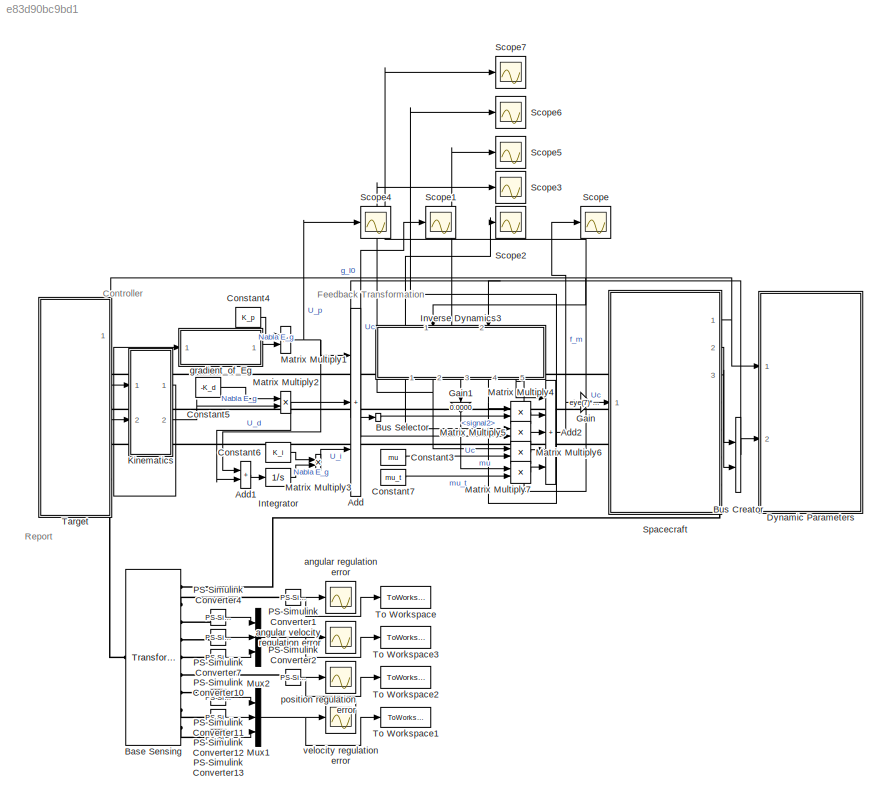
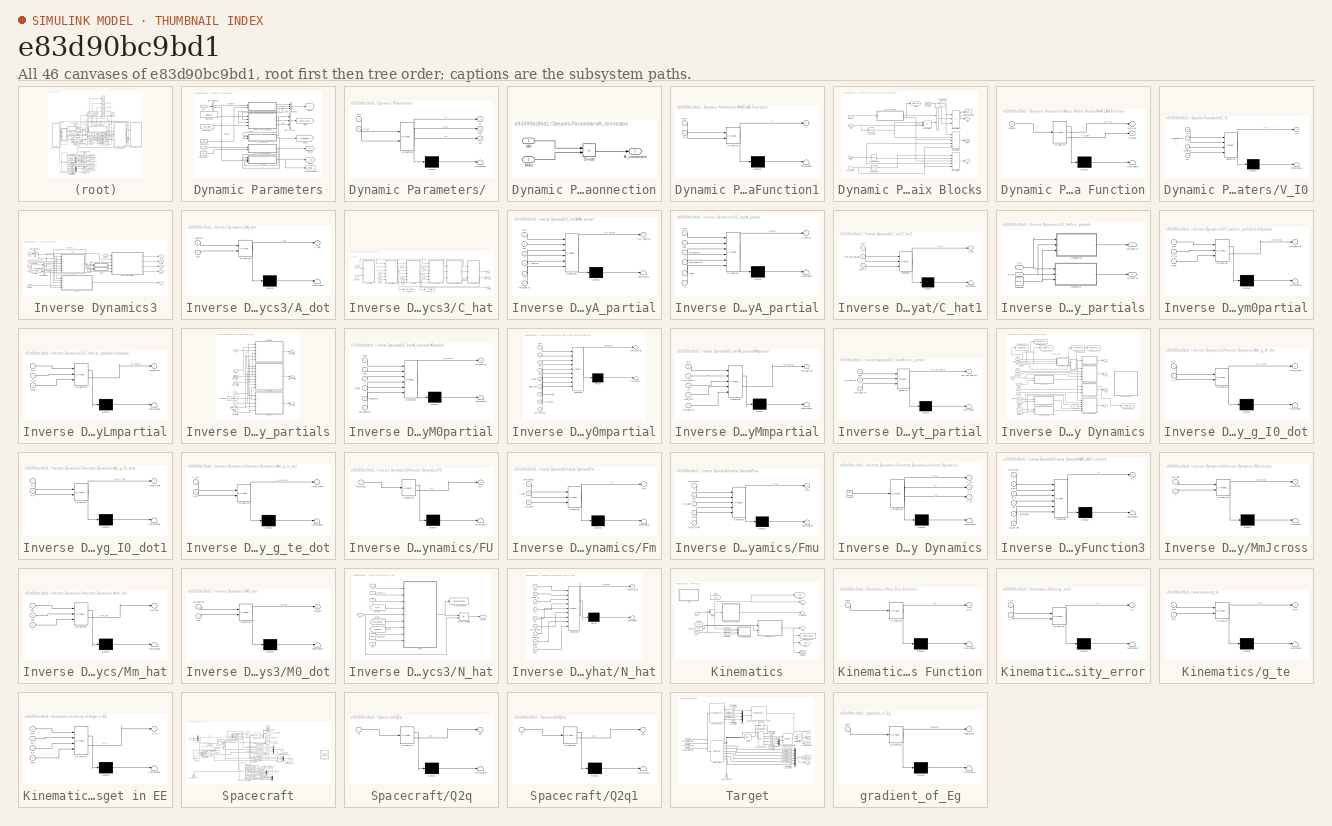
[diagram: thumbnail index - all 46 canvases of the model, root first then tree order]
MODEL slx_e83d90bc9bd1
KIND model
CONFIG AbsTol = auto
CONFIG EnableMultiTasking = off
CONFIG FixedStep = 0.01
CONFIG MaxStep = auto
CONFIG MinStep = auto
CONFIG RelTol = 1e-3
CONFIG SampleTimeConstraint = Unconstrained
CONFIG SolverName = ode4
CONFIG StartTime = 0.0
CONFIG StopTime = 3
BLOCK [Sum] Add
  IconShape = rectangular
  Inputs = +++
  Ports = [3, 1]
BLOCK [Sum] Add1
  IconShape = rectangular
  Ports = [2, 1]
BLOCK [Sum] Add2
  IconShape = rectangular
  Inputs = +++++
  Ports = [5, 1]
BLOCK [Reference] Base Sensing  REF=sm_lib/Frames and
Transforms/Transform
Sensor
  Ports = [0, 0, 0, 0, 0, 1, 9]
  SourceBlock = sm_lib/Frames and\nTransforms/Transform\nSensor
  SourceProductBaseCode = MS
  SourceType = Transform\nSensor
BLOCK [BusCreator] Bus Creator
  DisplayOption = bar
  InheritFromInputs = on
  Inputs = 2
  Ports = [2, 1]
BLOCK [BusSelector] Bus Selector
  OutputSignals = signal2
  Ports = [1, 1]
BLOCK [Constant] Constant3
  Value = mu
BLOCK [Constant] Constant4
  Value = K_p
BLOCK [Constant] Constant5
  Value = -K_d
BLOCK [Constant] Constant6
  Value = K_i
BLOCK [Constant] Constant7
  Value = mu_t
BLOCK [SubSystem] Dynamic Parameters
  Ports = [2]
  RequestExecContextInheritance = off
BLOCK [SubSystem] Dynamic Parameters/ 
  ErrorFcn = Stateflow.Translate.translate
  PermitHierarchicalResolution = ExplicitOnly
  Ports = [2, 3]
  RequestExecContextInheritance = off
  SFBlockType = MATLAB Function
  TreatAsAtomicUnit = on
BLOCK [Demux] Dynamic Parameters/ / Demux 
  Outputs = 1
  Ports = [1, 1]
BLOCK [S-Function] Dynamic Parameters/ / SFunction 
  EnableBusSupport = on
  FunctionName = sf_sfun
  PortCounts = [2 4]
  Ports = [2, 4]
  SFcnIsStateOwnerBlock = off
  SFunctionDeploymentMode = off
  Tag = Stateflow S-Function 61
BLOCK [Terminator] Dynamic Parameters/ / Terminator 
BLOCK [Outport] Dynamic Parameters/ /L0
BLOCK [Outport] Dynamic Parameters/ /Lm
  Port = 3
BLOCK [Outport] Dynamic Parameters/ /Lm0
  Port = 2
BLOCK [Inport] Dynamic Parameters/ /Xi_m
  Port = 2
BLOCK [Inport] Dynamic Parameters/ /q_m
BLOCK [SubSystem] Dynamic Parameters/A_connection
  Ports = [2, 1]
  RequestExecContextInheritance = off
BLOCK [Outport] Dynamic Parameters/A_connection/A_connection
BLOCK [Product] Dynamic Parameters/A_connection/Divide
  Inputs = /*
  Multiplication = Matrix(*)
  Ports = [2, 1]
BLOCK [Inport] Dynamic Parameters/A_connection/M0
BLOCK [Inport] Dynamic Parameters/A_connection/M0m
  Port = 2
BLOCK [BusCreator] Dynamic Parameters/Bus Creator
  DisplayOption = bar
  InheritFromInputs = on
  Inputs = 3
  Ports = [3, 1]
BLOCK [BusCreator] Dynamic Parameters/Bus Creator2
  DisplayOption = bar
  InheritFromInputs = on
  Inputs = 3
  Ports = [3, 1]
BLOCK [BusSelector] Dynamic Parameters/Bus Selector
  OutputSignals = signal1,signal2
  Ports = [1, 2]
BLOCK [Constant] Dynamic Parameters/Constant
  Value = diag_M
  VectorParams1D = off
BLOCK [Constant] Dynamic Parameters/Constant1
  Value = mu
BLOCK [Constant] Dynamic Parameters/Constant2
  Value = Xi_m
BLOCK [Constant] Dynamic Parameters/Constant3
  Value = Xi_m_matrix
BLOCK [Goto] Dynamic Parameters/Goto
  GotoTag = Mass_Matrix
  TagVisibility = global
BLOCK [Goto] Dynamic Parameters/Goto1
  GotoTag = A_connection
  TagVisibility = global
BLOCK [Goto] Dynamic Parameters/Goto3
  GotoTag = V_I0
  TagVisibility = global
BLOCK [Goto] Dynamic Parameters/Goto4
  GotoTag = P
  TagVisibility = global
BLOCK [Goto] Dynamic Parameters/Goto5
  GotoTag = L
  TagVisibility = global
BLOCK [SubSystem] Dynamic Parameters/MATLAB Function1
  ErrorFcn = Stateflow.Translate.translate
  PermitHierarchicalResolution = ExplicitOnly
  Ports = [2, 1]
  RequestExecContextInheritance = off
  SFBlockType = MATLAB Function
  TreatAsAtomicUnit = on
BLOCK [Demux] Dynamic Parameters/MATLAB Function1/ Demux 
  Outputs = 1
  Ports = [1, 1]
BLOCK [S-Function] Dynamic Parameters/MATLAB Function1/ SFunction 
  EnableBusSupport = on
  FunctionName = sf_sfun
  PortCounts = [2 2]
  Ports = [2, 2]
  SFcnIsStateOwnerBlock = off
  SFunctionDeploymentMode = off
  Tag = Stateflow S-Function 22
BLOCK [Terminator] Dynamic Parameters/MATLAB Function1/ Terminator 
BLOCK [Outport] Dynamic Parameters/MATLAB Function1/P
BLOCK [Inport] Dynamic Parameters/MATLAB Function1/g_I0
BLOCK [Inport] Dynamic Parameters/MATLAB Function1/mu
  Port = 2
BLOCK [SubSystem] Dynamic Parameters/Mass Matrix Blocks
  Ports = [4, 3]
  RequestExecContextInheritance = off
BLOCK [Sum] Dynamic Parameters/Mass Matrix Blocks/Add
  IconShape = rectangular
  Ports = [2, 1]
BLOCK [Constant] Dynamic Parameters/Mass Matrix Blocks/Constant
  Value = iota0
BLOCK [Goto] Dynamic Parameters/Mass Matrix Blocks/Goto5
  GotoTag = diag_Mm
  TagVisibility = global
BLOCK [Inport] Dynamic Parameters/Mass Matrix Blocks/Lm
  Port = 3
BLOCK [Inport] Dynamic Parameters/Mass Matrix Blocks/Lm0
  Port = 2
BLOCK [Outport] Dynamic Parameters/Mass Matrix Blocks/M0
BLOCK [Outport] Dynamic Parameters/Mass Matrix Blocks/M0m
  Port = 2
BLOCK [SubSystem] Dynamic Parameters/Mass Matrix Blocks/MATLAB Function
  ErrorFcn = Stateflow.Translate.translate
  PermitHierarchicalResolution = ExplicitOnly
  Ports = [1, 2]
  RequestExecContextInheritance = off
  SFBlockType = MATLAB Function
  TreatAsAtomicUnit = on
BLOCK [Demux] Dynamic Parameters/Mass Matrix Blocks/MATLAB Function/ Demux 
  Outputs = 1
  Ports = [1, 1]
BLOCK [S-Function] Dynamic Parameters/Mass Matrix Blocks/MATLAB Function/ SFunction 
  EnableBusSupport = on
  FunctionName = sf_sfun
  PortCounts = [1 3]
  Ports = [1, 3]
  SFcnIsStateOwnerBlock = off
  SFunctionDeploymentMode = off
  Tag = Stateflow S-Function 63
BLOCK [Terminator] Dynamic Parameters/Mass Matrix Blocks/MATLAB Function/ Terminator 
BLOCK [Inport] Dynamic Parameters/Mass Matrix Blocks/MATLAB Function/diag_M
BLOCK [Outport] Dynamic Parameters/Mass Matrix Blocks/MATLAB Function/m0_frak
BLOCK [Outport] Dynamic Parameters/Mass Matrix Blocks/MATLAB Function/m_diag
  Port = 2
BLOCK [Product] Dynamic Parameters/Mass Matrix Blocks/Matrix Multiply1
  Inputs = 5
  Multiplication = Matrix(*)
  Ports = [5, 1]
BLOCK [Product] Dynamic Parameters/Mass Matrix Blocks/Matrix Multiply2
  Inputs = 5
  Multiplication = Matrix(*)
  Ports = [5, 1]
BLOCK [Product] Dynamic Parameters/Mass Matrix Blocks/Matrix Multiply3
  Inputs = 3
  Multiplication = Matrix(*)
  Ports = [3, 1]
BLOCK [Product] Dynamic Parameters/Mass Matrix Blocks/Matrix Multiply4
  Inputs = 3
  Multiplication = Matrix(*)
  Ports = [3, 1]
BLOCK [Outport] Dynamic Parameters/Mass Matrix Blocks/Mm
  Port = 3
BLOCK [ToWorkspace] Dynamic Parameters/Mass Matrix Blocks/To Workspace2
  FixptAsFi = on
  MaxDataPoints = inf
  Ports = [1]
  SampleTime = -1
  SaveFormat = Timeseries
  VariableName = m0calc
BLOCK [Math] Dynamic Parameters/Mass Matrix Blocks/Transpose1
  Operator = transpose
  Ports = [1, 1]
BLOCK [Math] Dynamic Parameters/Mass Matrix Blocks/Transpose2
  Operator = transpose
  Ports = [1, 1]
BLOCK [Math] Dynamic Parameters/Mass Matrix Blocks/Transpose3
  Operator = transpose
  Ports = [1, 1]
BLOCK [Math] Dynamic Parameters/Mass Matrix Blocks/Transpose4
  Operator = transpose
  Ports = [1, 1]
BLOCK [Inport] Dynamic Parameters/Mass Matrix Blocks/Xi_m_matrix
  Port = 4
BLOCK [Inport] Dynamic Parameters/Mass Matrix Blocks/diag_M
BLOCK [ToWorkspace] Dynamic Parameters/To Workspace1
  FixptAsFi = on
  MaxDataPoints = inf
  Ports = [1]
  SampleTime = -1
  SaveFormat = Timeseries
  VariableName = V
BLOCK [SubSystem] Dynamic Parameters/V_I0
  ErrorFcn = Stateflow.Translate.translate
  PermitHierarchicalResolution = ExplicitOnly
  Ports = [4, 1]
  RequestExecContextInheritance = off
  SFBlockType = MATLAB Function
  TreatAsAtomicUnit = on
BLOCK [Demux] Dynamic Parameters/V_I0/ Demux 
  Outputs = 1
  Ports = [1, 1]
BLOCK [S-Function] Dynamic Parameters/V_I0/ SFunction 
  EnableBusSupport = on
  FunctionName = sf_sfun
  PortCounts = [4 2]
  Ports = [4, 2]
  SFcnIsStateOwnerBlock = off
  SFunctionDeploymentMode = off
  Tag = Stateflow S-Function 64
BLOCK [Terminator] Dynamic Parameters/V_I0/ Terminator 
BLOCK [Inport] Dynamic Parameters/V_I0/A_connection
  Port = 2
BLOCK [Inport] Dynamic Parameters/V_I0/M0
  Port = 4
BLOCK [Inport] Dynamic Parameters/V_I0/P
BLOCK [Outport] Dynamic Parameters/V_I0/V_I0
BLOCK [Inport] Dynamic Parameters/V_I0/q_dot_m
  Port = 3
BLOCK [Inport] Dynamic Parameters/g_I0
BLOCK [Inport] Dynamic Parameters/q_m
  Port = 2
BLOCK [Gain] Gain
  Gain = eye(7)*0.001
  Multiplication = Matrix(K*u)
BLOCK [Gain] Gain1
  Gain = 0.0000
  NameLocation = left
BLOCK [Integrator] Integrator
  Ports = [1, 1]
BLOCK [SubSystem] Inverse Dynamics3
  Ports = [2, 5]
  RequestExecContextInheritance = off
BLOCK [SubSystem] Inverse Dynamics3/A_dot
  ErrorFcn = Stateflow.Translate.translate
  PermitHierarchicalResolution = ExplicitOnly
  Ports = [2, 1]
  RequestExecContextInheritance = off
  SFBlockType = MATLAB Function
  TreatAsAtomicUnit = on
BLOCK [Demux] Inverse Dynamics3/A_dot/ Demux 
  Outputs = 1
  Ports = [1, 1]
BLOCK [S-Function] Inverse Dynamics3/A_dot/ SFunction 
  EnableBusSupport = on
  FunctionName = sf_sfun
  PortCounts = [2 2]
  Ports = [2, 2]
  SFcnIsStateOwnerBlock = off
  SFunctionDeploymentMode = off
  Tag = Stateflow S-Function 95
BLOCK [Terminator] Inverse Dynamics3/A_dot/ Terminator 
BLOCK [Outport] Inverse Dynamics3/A_dot/A_dot
BLOCK [Inport] Inverse Dynamics3/A_dot/A_partial
BLOCK [Inport] Inverse Dynamics3/A_dot/q_m
  Port = 2
BLOCK [BusSelector] Inverse Dynamics3/Bus Selector
  OutputSignals = M0,M0m,Mm
  Ports = [1, 3]
BLOCK [BusSelector] Inverse Dynamics3/Bus Selector1
  OutputSignals = Lm0,Lm
  Ports = [1, 2]
BLOCK [BusSelector] Inverse Dynamics3/Bus Selector2
  OutputSignals = signal1,signal2
  Ports = [1, 2]
BLOCK [SubSystem] Inverse Dynamics3/C_hat
  Ports = [7, 3]
  RequestExecContextInheritance = off
BLOCK [Inport] Inverse Dynamics3/C_hat/<Lm0>
  Port = 4
BLOCK [Inport] Inverse Dynamics3/C_hat/<Lm>
  Port = 5
BLOCK [Inport] Inverse Dynamics3/C_hat/<M0>
  Port = 6
BLOCK [InportShadow] Inverse Dynamics3/C_hat/<M0>1
  Port = 6
BLOCK [Inport] Inverse Dynamics3/C_hat/<M0m>
  Port = 7
BLOCK [Inport] Inverse Dynamics3/C_hat/A
  Port = 3
BLOCK [SubSystem] Inverse Dynamics3/C_hat/AMA_partial
  ErrorFcn = Stateflow.Translate.translate
  PermitHierarchicalResolution = ExplicitOnly
  Ports = [6, 1]
  RequestExecContextInheritance = off
  SFBlockType = MATLAB Function
  TreatAsAtomicUnit = on
BLOCK [Demux] Inverse Dynamics3/C_hat/AMA_partial/ Demux 
  Outputs = 1
  Ports = [1, 1]
BLOCK [S-Function] Inverse Dynamics3/C_hat/AMA_partial/ SFunction 
  EnableBusSupport = on
  FunctionName = sf_sfun
  PortCounts = [6 2]
  Ports = [6, 2]
  SFcnIsStateOwnerBlock = off
  SFunctionDeploymentMode = off
  Tag = Stateflow S-Function 96
BLOCK [Terminator] Inverse Dynamics3/C_hat/AMA_partial/ Terminator 
BLOCK [Inport] Inverse Dynamics3/C_hat/AMA_partial/A
  Port = 3
BLOCK [Outport] Inverse Dynamics3/C_hat/AMA_partial/AMA_partial
BLOCK [Inport] Inverse Dynamics3/C_hat/AMA_partial/A_partial
  Port = 4
BLOCK [Inport] Inverse Dynamics3/C_hat/AMA_partial/M0
  Port = 2
BLOCK [Inport] Inverse Dynamics3/C_hat/AMA_partial/M0_partial
  Port = 6
BLOCK [Inport] Inverse Dynamics3/C_hat/AMA_partial/V
  Port = 5
BLOCK [Inport] Inverse Dynamics3/C_hat/AMA_partial/q_m
BLOCK [SubSystem] Inverse Dynamics3/C_hat/A_partial
  ErrorFcn = Stateflow.Translate.translate
  PermitHierarchicalResolution = ExplicitOnly
  Ports = [6, 1]
  RequestExecContextInheritance = off
  SFBlockType = MATLAB Function
  TreatAsAtomicUnit = on
BLOCK [Demux] Inverse Dynamics3/C_hat/A_partial/ Demux 
  Outputs = 1
  Ports = [1, 1]
BLOCK [S-Function] Inverse Dynamics3/C_hat/A_partial/ SFunction 
  EnableBusSupport = on
  FunctionName = sf_sfun
  PortCounts = [6 2]
  Ports = [6, 2]
  SFcnIsStateOwnerBlock = off
  SFunctionDeploymentMode = off
  Tag = Stateflow S-Function 97
BLOCK [Terminator] Inverse Dynamics3/C_hat/A_partial/ Terminator 
BLOCK [Outport] Inverse Dynamics3/C_hat/A_partial/A_partial
BLOCK [Inport] Inverse Dynamics3/C_hat/A_partial/M0
  Port = 2
BLOCK [Inport] Inverse Dynamics3/C_hat/A_partial/M0_partial
  Port = 3
BLOCK [Inport] Inverse Dynamics3/C_hat/A_partial/M0m
  Port = 5
BLOCK [Inport] Inverse Dynamics3/C_hat/A_partial/M0m_partial
  Port = 4
BLOCK [Inport] Inverse Dynamics3/C_hat/A_partial/V
  Port = 6
BLOCK [Inport] Inverse Dynamics3/C_hat/A_partial/q_m
BLOCK [Outport] Inverse Dynamics3/C_hat/A_partial1
  Port = 2
BLOCK [Outport] Inverse Dynamics3/C_hat/C_hat
  Port = 3
BLOCK [SubSystem] Inverse Dynamics3/C_hat/C_hat1
  ErrorFcn = Stateflow.Translate.translate
  PermitHierarchicalResolution = ExplicitOnly
  Ports = [3, 1]
  RequestExecContextInheritance = off
  SFBlockType = MATLAB Function
  TreatAsAtomicUnit = on
BLOCK [Demux] Inverse Dynamics3/C_hat/C_hat1/ Demux 
  Outputs = 1
  Ports = [1, 1]
BLOCK [S-Function] Inverse Dynamics3/C_hat/C_hat1/ SFunction 
  EnableBusSupport = on
  FunctionName = sf_sfun
  PortCounts = [3 2]
  Ports = [3, 2]
  SFcnIsStateOwnerBlock = off
  SFunctionDeploymentMode = off
  Tag = Stateflow S-Function 98
BLOCK [Terminator] Inverse Dynamics3/C_hat/C_hat1/ Terminator 
BLOCK [Outport] Inverse Dynamics3/C_hat/C_hat1/C_hat
BLOCK [Inport] Inverse Dynamics3/C_hat/C_hat1/Mm_hat_partial
  Port = 2
BLOCK [Inport] Inverse Dynamics3/C_hat/C_hat1/q_dot_m
  Port = 3
BLOCK [Inport] Inverse Dynamics3/C_hat/C_hat1/q_m
BLOCK [Constant] Inverse Dynamics3/C_hat/Constant
  Value = Xi_m
BLOCK [From] Inverse Dynamics3/C_hat/From4
  GotoTag = V_I0
  TagVisibility = global
BLOCK [From] Inverse Dynamics3/C_hat/From6
  GotoTag = V_I0
  TagVisibility = global
BLOCK [From] Inverse Dynamics3/C_hat/From7
  GotoTag = V_I0
  TagVisibility = global
BLOCK [Goto] Inverse Dynamics3/C_hat/Goto1
  GotoTag = M0_partial
  TagVisibility = global
BLOCK [Goto] Inverse Dynamics3/C_hat/Goto2
  GotoTag = A_partial
  TagVisibility = global
BLOCK [SubSystem] Inverse Dynamics3/C_hat/Lm_partials
  Ports = [2, 2]
  RequestExecContextInheritance = off
BLOCK [Constant] Inverse Dynamics3/C_hat/Lm_partials/Constant
  Value = iota0
BLOCK [Outport] Inverse Dynamics3/C_hat/Lm_partials/Lm0_partial
  Port = 2
BLOCK [SubSystem] Inverse Dynamics3/C_hat/Lm_partials/Lm0partial
  ErrorFcn = Stateflow.Translate.translate
  PermitHierarchicalResolution = ExplicitOnly
  Ports = [3, 1]
  RequestExecContextInheritance = off
  SFBlockType = MATLAB Function
  TreatAsAtomicUnit = on
BLOCK [Demux] Inverse Dynamics3/C_hat/Lm_partials/Lm0partial/ Demux 
  Outputs = 1
  Ports = [1, 1]
BLOCK [S-Function] Inverse Dynamics3/C_hat/Lm_partials/Lm0partial/ SFunction 
  EnableBusSupport = on
  FunctionName = sf_sfun
  PortCounts = [3 2]
  Ports = [3, 2]
  SFcnIsStateOwnerBlock = off
  SFunctionDeploymentMode = off
  Tag = Stateflow S-Function 99
BLOCK [Terminator] Inverse Dynamics3/C_hat/Lm_partials/Lm0partial/ Terminator 
BLOCK [Outport] Inverse Dynamics3/C_hat/Lm_partials/Lm0partial/Lm0_partial
BLOCK [Inport] Inverse Dynamics3/C_hat/Lm_partials/Lm0partial/Xi_m
  Port = 2
BLOCK [Inport] Inverse Dynamics3/C_hat/Lm_partials/Lm0partial/iota0
  Port = 3
BLOCK [Inport] Inverse Dynamics3/C_hat/Lm_partials/Lm0partial/q_m
BLOCK [Outport] Inverse Dynamics3/C_hat/Lm_partials/Lm_partial
BLOCK [SubSystem] Inverse Dynamics3/C_hat/Lm_partials/Lmpartial
  ErrorFcn = Stateflow.Translate.translate
  PermitHierarchicalResolution = ExplicitOnly
  Ports = [3, 1]
  RequestExecContextInheritance = off
  SFBlockType = MATLAB Function
  TreatAsAtomicUnit = on
BLOCK [Demux] Inverse Dynamics3/C_hat/Lm_partials/Lmpartial/ Demux 
  Outputs = 1
  Ports = [1, 1]
BLOCK [S-Function] Inverse Dynamics3/C_hat/Lm_partials/Lmpartial/ SFunction 
  EnableBusSupport = on
  FunctionName = sf_sfun
  PortCounts = [3 2]
  Ports = [3, 2]
  SFcnIsStateOwnerBlock = off
  SFunctionDeploymentMode = off
  Tag = Stateflow S-Function 100
BLOCK [Terminator] Inverse Dynamics3/C_hat/Lm_partials/Lmpartial/ Terminator 
BLOCK [Outport] Inverse Dynamics3/C_hat/Lm_partials/Lmpartial/Lm_partial
BLOCK [Inport] Inverse Dynamics3/C_hat/Lm_partials/Lmpartial/Xi_m
  Port = 2
BLOCK [Inport] Inverse Dynamics3/C_hat/Lm_partials/Lmpartial/iota0
  Port = 3
BLOCK [Inport] Inverse Dynamics3/C_hat/Lm_partials/Lmpartial/q_m
BLOCK [Inport] Inverse Dynamics3/C_hat/Lm_partials/Xi_m
  Port = 2
BLOCK [Inport] Inverse Dynamics3/C_hat/Lm_partials/q_m
BLOCK [Outport] Inverse Dynamics3/C_hat/M0_partial
BLOCK [SubSystem] Inverse Dynamics3/C_hat/M_partials
  Ports = [6, 3]
  RequestExecContextInheritance = off
BLOCK [SubSystem] Inverse Dynamics3/C_hat/M_partials/ M0partial
  ErrorFcn = Stateflow.Translate.translate
  PermitHierarchicalResolution = ExplicitOnly
  Ports = [6, 1]
  RequestExecContextInheritance = off
  SFBlockType = MATLAB Function
  TreatAsAtomicUnit = on
BLOCK [Demux] Inverse Dynamics3/C_hat/M_partials/ M0partial/ Demux 
  Outputs = 1
  Ports = [1, 1]
BLOCK [S-Function] Inverse Dynamics3/C_hat/M_partials/ M0partial/ SFunction 
  EnableBusSupport = on
  FunctionName = sf_sfun
  PortCounts = [6 2]
  Ports = [6, 2]
  SFcnIsStateOwnerBlock = off
  SFunctionDeploymentMode = off
  Tag = Stateflow S-Function 101
BLOCK [Terminator] Inverse Dynamics3/C_hat/M_partials/ M0partial/ Terminator 
BLOCK [Inport] Inverse Dynamics3/C_hat/M_partials/ M0partial/Lm0
  Port = 2
BLOCK [Inport] Inverse Dynamics3/C_hat/M_partials/ M0partial/Lm0_partial
  Port = 6
BLOCK [Outport] Inverse Dynamics3/C_hat/M_partials/ M0partial/M0_partial
BLOCK [Inport] Inverse Dynamics3/C_hat/M_partials/ M0partial/V
  Port = 3
BLOCK [Inport] Inverse Dynamics3/C_hat/M_partials/ M0partial/diag_Mm
  Port = 5
BLOCK [Inport] Inverse Dynamics3/C_hat/M_partials/ M0partial/iota0
  Port = 4
BLOCK [Inport] Inverse Dynamics3/C_hat/M_partials/ M0partial/q_m
BLOCK [Constant] Inverse Dynamics3/C_hat/M_partials/Constant
  Value = iota0
BLOCK [Constant] Inverse Dynamics3/C_hat/M_partials/Constant1
  Value = Xi_m_matrix
BLOCK [From] Inverse Dynamics3/C_hat/M_partials/From8
  GotoTag = diag_Mm
  TagVisibility = global
BLOCK [Inport] Inverse Dynamics3/C_hat/M_partials/Lm
  Port = 4
BLOCK [Inport] Inverse Dynamics3/C_hat/M_partials/Lm0
  Port = 5
BLOCK [Inport] Inverse Dynamics3/C_hat/M_partials/Lm0_partial
  Port = 3
BLOCK [Inport] Inverse Dynamics3/C_hat/M_partials/Lm_partial
  Port = 2
BLOCK [Outport] Inverse Dynamics3/C_hat/M_partials/M0_partial
BLOCK [Outport] Inverse Dynamics3/C_hat/M_partials/M0m_partial
  Port = 2
BLOCK [SubSystem] Inverse Dynamics3/C_hat/M_partials/M0mpartial
  ErrorFcn = Stateflow.Translate.translate
  PermitHierarchicalResolution = ExplicitOnly
  Ports = [9, 1]
  RequestExecContextInheritance = off
  SFBlockType = MATLAB Function
  TreatAsAtomicUnit = on
BLOCK [Demux] Inverse Dynamics3/C_hat/M_partials/M0mpartial/ Demux 
  Outputs = 1
  Ports = [1, 1]
BLOCK [S-Function] Inverse Dynamics3/C_hat/M_partials/M0mpartial/ SFunction 
  EnableBusSupport = on
  FunctionName = sf_sfun
  PortCounts = [9 2]
  Ports = [9, 2]
  SFcnIsStateOwnerBlock = off
  SFunctionDeploymentMode = off
  Tag = Stateflow S-Function 102
BLOCK [Terminator] Inverse Dynamics3/C_hat/M_partials/M0mpartial/ Terminator 
BLOCK [Inport] Inverse Dynamics3/C_hat/M_partials/M0mpartial/Lm
  Port = 3
BLOCK [Inport] Inverse Dynamics3/C_hat/M_partials/M0mpartial/Lm0
  Port = 4
BLOCK [Inport] Inverse Dynamics3/C_hat/M_partials/M0mpartial/Lm0_partial
  Port = 7
BLOCK [Inport] Inverse Dynamics3/C_hat/M_partials/M0mpartial/Lm_partial
  Port = 8
BLOCK [Outport] Inverse Dynamics3/C_hat/M_partials/M0mpartial/M0m_partial
BLOCK [Inport] Inverse Dynamics3/C_hat/M_partials/M0mpartial/V
  Port = 2
BLOCK [Inport] Inverse Dynamics3/C_hat/M_partials/M0mpartial/Xi_m_matrix
  Port = 9
BLOCK [Inport] Inverse Dynamics3/C_hat/M_partials/M0mpartial/diag_Mm
  Port = 6
BLOCK [Inport] Inverse Dynamics3/C_hat/M_partials/M0mpartial/iota0
  Port = 5
BLOCK [Inport] Inverse Dynamics3/C_hat/M_partials/M0mpartial/q_m
BLOCK [Outport] Inverse Dynamics3/C_hat/M_partials/Mm_partial
  Port = 3
BLOCK [SubSystem] Inverse Dynamics3/C_hat/M_partials/Mmpartial
  ErrorFcn = Stateflow.Translate.translate
  PermitHierarchicalResolution = ExplicitOnly
  Ports = [5, 1]
  RequestExecContextInheritance = off
  SFBlockType = MATLAB Function
  TreatAsAtomicUnit = on
BLOCK [Demux] Inverse Dynamics3/C_hat/M_partials/Mmpartial/ Demux 
  Outputs = 1
  Ports = [1, 1]
BLOCK [S-Function] Inverse Dynamics3/C_hat/M_partials/Mmpartial/ SFunction 
  EnableBusSupport = on
  FunctionName = sf_sfun
  PortCounts = [5 2]
  Ports = [5, 2]
  SFcnIsStateOwnerBlock = off
  SFunctionDeploymentMode = off
  Tag = Stateflow S-Function 103
BLOCK [Terminator] Inverse Dynamics3/C_hat/M_partials/Mmpartial/ Terminator 
BLOCK [Inport] Inverse Dynamics3/C_hat/M_partials/Mmpartial/Lm
  Port = 3
BLOCK [Inport] Inverse Dynamics3/C_hat/M_partials/Mmpartial/Lm_partial
  Port = 5
BLOCK [Outport] Inverse Dynamics3/C_hat/M_partials/Mmpartial/Mm_partial
BLOCK [Inport] Inverse Dynamics3/C_hat/M_partials/Mmpartial/Xi_m_matrix
  Port = 2
BLOCK [Inport] Inverse Dynamics3/C_hat/M_partials/Mmpartial/diag_Mm
  Port = 4
BLOCK [Inport] Inverse Dynamics3/C_hat/M_partials/Mmpartial/q_m
BLOCK [Inport] Inverse Dynamics3/C_hat/M_partials/V
  Port = 6
BLOCK [Inport] Inverse Dynamics3/C_hat/M_partials/q_m
BLOCK [SubSystem] Inverse Dynamics3/C_hat/Mm_hat_partial
  ErrorFcn = Stateflow.Translate.translate
  PermitHierarchicalResolution = ExplicitOnly
  Ports = [3, 1]
  RequestExecContextInheritance = off
  SFBlockType = MATLAB Function
  TreatAsAtomicUnit = on
BLOCK [Demux] Inverse Dynamics3/C_hat/Mm_hat_partial/ Demux 
  Outputs = 1
  Ports = [1, 1]
BLOCK [S-Function] Inverse Dynamics3/C_hat/Mm_hat_partial/ SFunction 
  EnableBusSupport = on
  FunctionName = sf_sfun
  PortCounts = [3 2]
  Ports = [3, 2]
  SFcnIsStateOwnerBlock = off
  SFunctionDeploymentMode = off
  Tag = Stateflow S-Function 104
BLOCK [Terminator] Inverse Dynamics3/C_hat/Mm_hat_partial/ Terminator 
BLOCK [Inport] Inverse Dynamics3/C_hat/Mm_hat_partial/AMA_partial
  Port = 2
BLOCK [Outport] Inverse Dynamics3/C_hat/Mm_hat_partial/Mm_hat_partial
BLOCK [Inport] Inverse Dynamics3/C_hat/Mm_hat_partial/Mm_partial
  Port = 3
BLOCK [Inport] Inverse Dynamics3/C_hat/Mm_hat_partial/q_m
BLOCK [Inport] Inverse Dynamics3/C_hat/q_dot_m1
  NameLocation = top
  Port = 2
BLOCK [Inport] Inverse Dynamics3/C_hat/q_m1
BLOCK [Outport] Inverse Dynamics3/F_U
BLOCK [Outport] Inverse Dynamics3/F_m
  Port = 4
BLOCK [Outport] Inverse Dynamics3/F_mu
  Port = 2
BLOCK [Outport] Inverse Dynamics3/F_t
  Port = 3
BLOCK [From] Inverse Dynamics3/From3
  GotoTag = P
  TagVisibility = global
BLOCK [From] Inverse Dynamics3/From4
  GotoTag = A_connection
  TagVisibility = global
BLOCK [From] Inverse Dynamics3/From5
  GotoTag = Mass_Matrix
  TagVisibility = global
BLOCK [From] Inverse Dynamics3/From6
  GotoTag = L
  TagVisibility = global
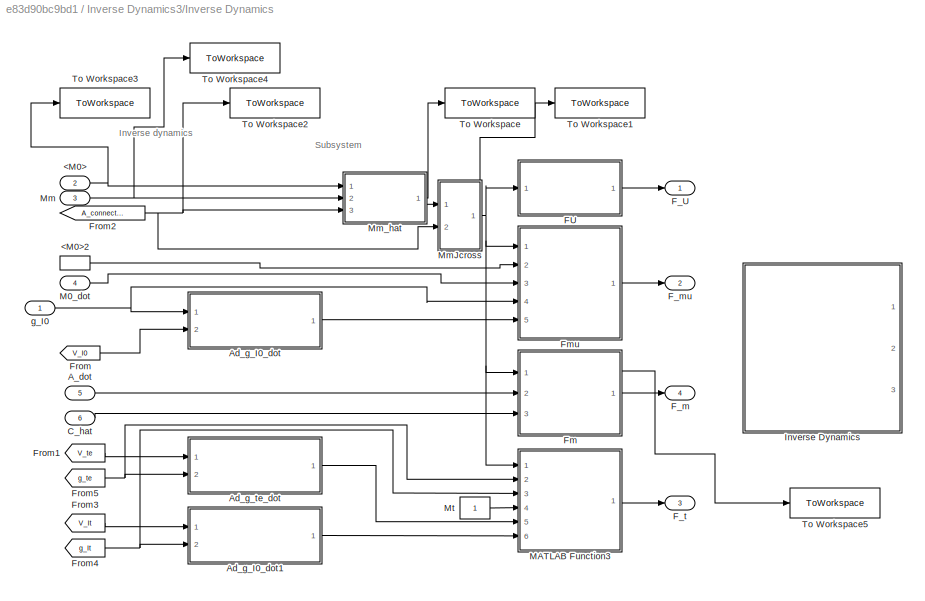
BLOCK [SubSystem] Inverse Dynamics3/Inverse Dynamics
  Ports = [6, 4]
  RequestExecContextInheritance = off
BLOCK [Inport] Inverse Dynamics3/Inverse Dynamics/<M0>
  Port = 2
BLOCK [InportShadow] Inverse Dynamics3/Inverse Dynamics/<M0>2
  Port = 2
BLOCK [Inport] Inverse Dynamics3/Inverse Dynamics/A_dot
  Port = 5
BLOCK [SubSystem] Inverse Dynamics3/Inverse Dynamics/Ad_g_I0_dot
  ErrorFcn = Stateflow.Translate.translate
  PermitHierarchicalResolution = ExplicitOnly
  Ports = [2, 1]
  RequestExecContextInheritance = off
  SFBlockType = MATLAB Function
  TreatAsAtomicUnit = on
BLOCK [Demux] Inverse Dynamics3/Inverse Dynamics/Ad_g_I0_dot/ Demux 
  Outputs = 1
  Ports = [1, 1]
BLOCK [S-Function] Inverse Dynamics3/Inverse Dynamics/Ad_g_I0_dot/ SFunction 
  EnableBusSupport = on
  FunctionName = sf_sfun
  PortCounts = [2 2]
  Ports = [2, 2]
  SFcnIsStateOwnerBlock = off
  SFunctionDeploymentMode = off
  Tag = Stateflow S-Function 105
BLOCK [Terminator] Inverse Dynamics3/Inverse Dynamics/Ad_g_I0_dot/ Terminator 
BLOCK [Outport] Inverse Dynamics3/Inverse Dynamics/Ad_g_I0_dot/Ad_g_I0_dot
BLOCK [Inport] Inverse Dynamics3/Inverse Dynamics/Ad_g_I0_dot/V_I0
  Port = 2
BLOCK [Inport] Inverse Dynamics3/Inverse Dynamics/Ad_g_I0_dot/g_I0
BLOCK [SubSystem] Inverse Dynamics3/Inverse Dynamics/Ad_g_I0_dot1
  ErrorFcn = Stateflow.Translate.translate
  PermitHierarchicalResolution = ExplicitOnly
  Ports = [2, 1]
  RequestExecContextInheritance = off
  SFBlockType = MATLAB Function
  TreatAsAtomicUnit = on
BLOCK [Demux] Inverse Dynamics3/Inverse Dynamics/Ad_g_I0_dot1/ Demux 
  Outputs = 1
  Ports = [1, 1]
BLOCK [S-Function] Inverse Dynamics3/Inverse Dynamics/Ad_g_I0_dot1/ SFunction 
  EnableBusSupport = on
  FunctionName = sf_sfun
  PortCounts = [2 2]
  Ports = [2, 2]
  SFcnIsStateOwnerBlock = off
  SFunctionDeploymentMode = off
  Tag = Stateflow S-Function 106
BLOCK [Terminator] Inverse Dynamics3/Inverse Dynamics/Ad_g_I0_dot1/ Terminator 
BLOCK [Outport] Inverse Dynamics3/Inverse Dynamics/Ad_g_I0_dot1/Ad_g_It_dot
BLOCK [Inport] Inverse Dynamics3/Inverse Dynamics/Ad_g_I0_dot1/V_t
BLOCK [Inport] Inverse Dynamics3/Inverse Dynamics/Ad_g_I0_dot1/g_It
  Port = 2
BLOCK [SubSystem] Inverse Dynamics3/Inverse Dynamics/Ad_g_te_dot
  ErrorFcn = Stateflow.Translate.translate
  PermitHierarchicalResolution = ExplicitOnly
  Ports = [2, 1]
  RequestExecContextInheritance = off
  SFBlockType = MATLAB Function
  TreatAsAtomicUnit = on
BLOCK [Demux] Inverse Dynamics3/Inverse Dynamics/Ad_g_te_dot/ Demux 
  Outputs = 1
  Ports = [1, 1]
BLOCK [S-Function] Inverse Dynamics3/Inverse Dynamics/Ad_g_te_dot/ SFunction 
  EnableBusSupport = on
  FunctionName = sf_sfun
  PortCounts = [2 2]
  Ports = [2, 2]
  SFcnIsStateOwnerBlock = off
  SFunctionDeploymentMode = off
  Tag = Stateflow S-Function 107
BLOCK [Terminator] Inverse Dynamics3/Inverse Dynamics/Ad_g_te_dot/ Terminator 
BLOCK [Outport] Inverse Dynamics3/Inverse Dynamics/Ad_g_te_dot/Ad_g_te_dot
BLOCK [Inport] Inverse Dynamics3/Inverse Dynamics/Ad_g_te_dot/V_te
BLOCK [Inport] Inverse Dynamics3/Inverse Dynamics/Ad_g_te_dot/g_te
  Port = 2
BLOCK [Inport] Inverse Dynamics3/Inverse Dynamics/C_hat
  Port = 6
BLOCK [SubSystem] Inverse Dynamics3/Inverse Dynamics/FU
  ErrorFcn = Stateflow.Translate.translate
  PermitHierarchicalResolution = ExplicitOnly
  Ports = [1, 1]
  RequestExecContextInheritance = off
  SFBlockType = MATLAB Function
  TreatAsAtomicUnit = on
BLOCK [Demux] Inverse Dynamics3/Inverse Dynamics/FU/ Demux 
  Outputs = 1
  Ports = [1, 1]
BLOCK [S-Function] Inverse Dynamics3/Inverse Dynamics/FU/ SFunction 
  EnableBusSupport = on
  FunctionName = sf_sfun
  PortCounts = [1 2]
  Ports = [1, 2]
  SFcnIsStateOwnerBlock = off
  SFunctionDeploymentMode = off
  Tag = Stateflow S-Function 108
BLOCK [Terminator] Inverse Dynamics3/Inverse Dynamics/FU/ Terminator 
BLOCK [Outport] Inverse Dynamics3/Inverse Dynamics/FU/F_U
BLOCK [Inport] Inverse Dynamics3/Inverse Dynamics/FU/MmJcross
BLOCK [Outport] Inverse Dynamics3/Inverse Dynamics/F_U
BLOCK [Outport] Inverse Dynamics3/Inverse Dynamics/F_m
  Port = 4
BLOCK [Outport] Inverse Dynamics3/Inverse Dynamics/F_mu
  Port = 2
BLOCK [Outport] Inverse Dynamics3/Inverse Dynamics/F_t
  Port = 3
BLOCK [SubSystem] Inverse Dynamics3/Inverse Dynamics/Fm
  ErrorFcn = Stateflow.Translate.translate
  PermitHierarchicalResolution = ExplicitOnly
  Ports = [3, 1]
  RequestExecContextInheritance = off
  SFBlockType = MATLAB Function
  TreatAsAtomicUnit = on
BLOCK [Demux] Inverse Dynamics3/Inverse Dynamics/Fm/ Demux 
  Outputs = 1
  Ports = [1, 1]
BLOCK [S-Function] Inverse Dynamics3/Inverse Dynamics/Fm/ SFunction 
  EnableBusSupport = on
  FunctionName = sf_sfun
  PortCounts = [3 2]
  Ports = [3, 2]
  SFcnIsStateOwnerBlock = off
  SFunctionDeploymentMode = off
  Tag = Stateflow S-Function 109
BLOCK [Terminator] Inverse Dynamics3/Inverse Dynamics/Fm/ Terminator 
BLOCK [Inport] Inverse Dynamics3/Inverse Dynamics/Fm/A_dot
  Port = 2
BLOCK [Inport] Inverse Dynamics3/Inverse Dynamics/Fm/Cm_hat
  Port = 3
BLOCK [Outport] Inverse Dynamics3/Inverse Dynamics/Fm/F_m
BLOCK [Inport] Inverse Dynamics3/Inverse Dynamics/Fm/MmJcross
BLOCK [SubSystem] Inverse Dynamics3/Inverse Dynamics/Fmu
  ErrorFcn = Stateflow.Translate.translate
  PermitHierarchicalResolution = ExplicitOnly
  Ports = [5, 1]
  RequestExecContextInheritance = off
  SFBlockType = MATLAB Function
  TreatAsAtomicUnit = on
BLOCK [Demux] Inverse Dynamics3/Inverse Dynamics/Fmu/ Demux 
  Outputs = 1
  Ports = [1, 1]
BLOCK [S-Function] Inverse Dynamics3/Inverse Dynamics/Fmu/ SFunction 
  EnableBusSupport = on
  FunctionName = sf_sfun
  PortCounts = [5 2]
  Ports = [5, 2]
  SFcnIsStateOwnerBlock = off
  SFunctionDeploymentMode = off
  Tag = Stateflow S-Function 110
BLOCK [Terminator] Inverse Dynamics3/Inverse Dynamics/Fmu/ Terminator 
BLOCK [Inport] Inverse Dynamics3/Inverse Dynamics/Fmu/Ad_g_I0_dot
  Port = 5
BLOCK [Outport] Inverse Dynamics3/Inverse Dynamics/Fmu/F_mu
BLOCK [Inport] Inverse Dynamics3/Inverse Dynamics/Fmu/M0
  Port = 2
BLOCK [Inport] Inverse Dynamics3/Inverse Dynamics/Fmu/M_0_dot
  Port = 3
BLOCK [Inport] Inverse Dynamics3/Inverse Dynamics/Fmu/MmJcross
BLOCK [Inport] Inverse Dynamics3/Inverse Dynamics/Fmu/g_I0
  Port = 4
BLOCK [From] Inverse Dynamics3/Inverse Dynamics/From
  GotoTag = V_I0
  TagVisibility = global
BLOCK [From] Inverse Dynamics3/Inverse Dynamics/From1
  GotoTag = V_te
  TagVisibility = global
BLOCK [From] Inverse Dynamics3/Inverse Dynamics/From2
  GotoTag = A_connection
  TagVisibility = global
BLOCK [From] Inverse Dynamics3/Inverse Dynamics/From3
  GotoTag = V_It
  TagVisibility = global
BLOCK [From] Inverse Dynamics3/Inverse Dynamics/From4
  GotoTag = g_It
  TagVisibility = global
BLOCK [From] Inverse Dynamics3/Inverse Dynamics/From5
  GotoTag = g_te
  TagVisibility = global
BLOCK [SubSystem] Inverse Dynamics3/Inverse Dynamics/Inverse Dynamics
  Commented = on
  ErrorFcn = Stateflow.Translate.translate
  PermitHierarchicalResolution = ExplicitOnly
  Ports = [0, 3]
  RequestExecContextInheritance = off
  SFBlockType = MATLAB Function
  TreatAsAtomicUnit = on
BLOCK [Demux] Inverse Dynamics3/Inverse Dynamics/Inverse Dynamics/ Demux 
  Outputs = 1
  Ports = [1, 1]
BLOCK [Ground] Inverse Dynamics3/Inverse Dynamics/Inverse Dynamics/ Ground 
BLOCK [S-Function] Inverse Dynamics3/Inverse Dynamics/Inverse Dynamics/ SFunction 
  EnableBusSupport = on
  FunctionName = sf_sfun
  PortCounts = [1 4]
  Ports = [1, 4]
  SFcnIsStateOwnerBlock = off
  SFunctionDeploymentMode = off
  Tag = Stateflow S-Function 111
BLOCK [Terminator] Inverse Dynamics3/Inverse Dynamics/Inverse Dynamics/ Terminator 
BLOCK [Outport] Inverse Dynamics3/Inverse Dynamics/Inverse Dynamics/F_m
  Port = 3
BLOCK [Outport] Inverse Dynamics3/Inverse Dynamics/Inverse Dynamics/F_mu
BLOCK [Outport] Inverse Dynamics3/Inverse Dynamics/Inverse Dynamics/F_t
  Port = 2
BLOCK [Inport] Inverse Dynamics3/Inverse Dynamics/M0_dot
  Port = 4
BLOCK [SubSystem] Inverse Dynamics3/Inverse Dynamics/MATLAB Function3
  ErrorFcn = Stateflow.Translate.translate
  PermitHierarchicalResolution = ExplicitOnly
  Ports = [6, 1]
  RequestExecContextInheritance = off
  SFBlockType = MATLAB Function
  TreatAsAtomicUnit = on
BLOCK [Demux] Inverse Dynamics3/Inverse Dynamics/MATLAB Function3/ Demux 
  Outputs = 1
  Ports = [1, 1]
BLOCK [S-Function] Inverse Dynamics3/Inverse Dynamics/MATLAB Function3/ SFunction 
  EnableBusSupport = on
  FunctionName = sf_sfun
  PortCounts = [6 2]
  Ports = [6, 2]
  SFcnIsStateOwnerBlock = off
  SFunctionDeploymentMode = off
  Tag = Stateflow S-Function 112
BLOCK [Terminator] Inverse Dynamics3/Inverse Dynamics/MATLAB Function3/ Terminator 
BLOCK [Inport] Inverse Dynamics3/Inverse Dynamics/MATLAB Function3/Ad_gIt_dot
  Port = 6
BLOCK [Inport] Inverse Dynamics3/Inverse Dynamics/MATLAB Function3/Ad_gte_dot
  Port = 5
BLOCK [Outport] Inverse Dynamics3/Inverse Dynamics/MATLAB Function3/F_t
BLOCK [Inport] Inverse Dynamics3/Inverse Dynamics/MATLAB Function3/MmJcross
BLOCK [Inport] Inverse Dynamics3/Inverse Dynamics/MATLAB Function3/Mt
  Port = 4
BLOCK [Inport] Inverse Dynamics3/Inverse Dynamics/MATLAB Function3/g_It
  Port = 3
BLOCK [Inport] Inverse Dynamics3/Inverse Dynamics/MATLAB Function3/g_te
  Port = 2
BLOCK [Inport] Inverse Dynamics3/Inverse Dynamics/Mm
  Port = 3
BLOCK [SubSystem] Inverse Dynamics3/Inverse Dynamics/MmJcross
  ErrorFcn = Stateflow.Translate.translate
  PermitHierarchicalResolution = ExplicitOnly
  Ports = [2, 1]
  RequestExecContextInheritance = off
  SFBlockType = MATLAB Function
  TreatAsAtomicUnit = on
BLOCK [Demux] Inverse Dynamics3/Inverse Dynamics/MmJcross/ Demux 
  Outputs = 1
  Ports = [1, 1]
BLOCK [S-Function] Inverse Dynamics3/Inverse Dynamics/MmJcross/ SFunction 
  EnableBusSupport = on
  FunctionName = sf_sfun
  PortCounts = [2 2]
  Ports = [2, 2]
  SFcnIsStateOwnerBlock = off
  SFunctionDeploymentMode = off
  Tag = Stateflow S-Function 113
BLOCK [Terminator] Inverse Dynamics3/Inverse Dynamics/MmJcross/ Terminator 
BLOCK [Inport] Inverse Dynamics3/Inverse Dynamics/MmJcross/A
  Port = 2
BLOCK [Outport] Inverse Dynamics3/Inverse Dynamics/MmJcross/MmJcross
BLOCK [Inport] Inverse Dynamics3/Inverse Dynamics/MmJcross/Mm_hat
BLOCK [SubSystem] Inverse Dynamics3/Inverse Dynamics/Mm_hat
  ErrorFcn = Stateflow.Translate.translate
  PermitHierarchicalResolution = ExplicitOnly
  Ports = [3, 1]
  RequestExecContextInheritance = off
  SFBlockType = MATLAB Function
  TreatAsAtomicUnit = on
BLOCK [Demux] Inverse Dynamics3/Inverse Dynamics/Mm_hat/ Demux 
  Outputs = 1
  Ports = [1, 1]
BLOCK [S-Function] Inverse Dynamics3/Inverse Dynamics/Mm_hat/ SFunction 
  EnableBusSupport = on
  FunctionName = sf_sfun
  PortCounts = [3 2]
  Ports = [3, 2]
  SFcnIsStateOwnerBlock = off
  SFunctionDeploymentMode = off
  Tag = Stateflow S-Function 114
BLOCK [Terminator] Inverse Dynamics3/Inverse Dynamics/Mm_hat/ Terminator 
BLOCK [Inport] Inverse Dynamics3/Inverse Dynamics/Mm_hat/A
  Port = 3
BLOCK [Inport] Inverse Dynamics3/Inverse Dynamics/Mm_hat/M0
BLOCK [Inport] Inverse Dynamics3/Inverse Dynamics/Mm_hat/Mm
  Port = 2
BLOCK [Outport] Inverse Dynamics3/Inverse Dynamics/Mm_hat/Mm_hat
BLOCK [Constant] Inverse Dynamics3/Inverse Dynamics/Mt
BLOCK [ToWorkspace] Inverse Dynamics3/Inverse Dynamics/To Workspace
  FixptAsFi = on
  MaxDataPoints = inf
  Ports = [1]
  SampleTime = -1
  SaveFormat = Timeseries
  VariableName = mhat
BLOCK [ToWorkspace] Inverse Dynamics3/Inverse Dynamics/To Workspace1
  FixptAsFi = on
  MaxDataPoints = inf
  Ports = [1]
  SampleTime = -1
  SaveFormat = Timeseries
  VariableName = mjcross
BLOCK [ToWorkspace] Inverse Dynamics3/Inverse Dynamics/To Workspace2
  FixptAsFi = on
  MaxDataPoints = inf
  Ports = [1]
  SampleTime = -1
  SaveFormat = Timeseries
  VariableName = A
BLOCK [ToWorkspace] Inverse Dynamics3/Inverse Dynamics/To Workspace3
  FixptAsFi = on
  MaxDataPoints = inf
  Ports = [1]
  SampleTime = -1
  SaveFormat = Timeseries
  VariableName = M0
BLOCK [ToWorkspace] Inverse Dynamics3/Inverse Dynamics/To Workspace4
  FixptAsFi = on
  MaxDataPoints = inf
  Ports = [1]
  SampleTime = -1
  SaveFormat = Timeseries
  VariableName = Mm
BLOCK [ToWorkspace] Inverse Dynamics3/Inverse Dynamics/To Workspace5
  FixptAsFi = on
  MaxDataPoints = inf
  Ports = [1]
  SampleTime = -1
  SaveFormat = Timeseries
  VariableName = fm
BLOCK [Inport] Inverse Dynamics3/Inverse Dynamics/g_I0
BLOCK [SubSystem] Inverse Dynamics3/M0_dot
  ErrorFcn = Stateflow.Translate.translate
  PermitHierarchicalResolution = ExplicitOnly
  Ports = [2, 1]
  RequestExecContextInheritance = off
  SFBlockType = MATLAB Function
  TreatAsAtomicUnit = on
BLOCK [Demux] Inverse Dynamics3/M0_dot/ Demux 
  Outputs = 1
  Ports = [1, 1]
BLOCK [S-Function] Inverse Dynamics3/M0_dot/ SFunction 
  EnableBusSupport = on
  FunctionName = sf_sfun
  PortCounts = [2 2]
  Ports = [2, 2]
  SFcnIsStateOwnerBlock = off
  SFunctionDeploymentMode = off
  Tag = Stateflow S-Function 116
BLOCK [Terminator] Inverse Dynamics3/M0_dot/ Terminator 
BLOCK [Outport] Inverse Dynamics3/M0_dot/M0_dot
BLOCK [Inport] Inverse Dynamics3/M0_dot/M0_partial
BLOCK [Inport] Inverse Dynamics3/M0_dot/q_m
  Port = 2
BLOCK [Outport] Inverse Dynamics3/N
  Port = 5
BLOCK [SubSystem] Inverse Dynamics3/N_hat
  Ports = [5, 1]
  RequestExecContextInheritance = off
BLOCK [Inport] Inverse Dynamics3/N_hat/A
  Port = 3
BLOCK [Constant] Inverse Dynamics3/N_hat/Constant
  Value = iota0
BLOCK [From] Inverse Dynamics3/N_hat/From
  GotoTag = A_partial
  TagVisibility = global
BLOCK [From] Inverse Dynamics3/N_hat/From1
  GotoTag = M0_partial
  TagVisibility = global
BLOCK [From] Inverse Dynamics3/N_hat/From2
  GotoTag = V_I0
  TagVisibility = global
BLOCK [Inport] Inverse Dynamics3/N_hat/M0
  Port = 5
BLOCK [Product] Inverse Dynamics3/N_hat/Matrix Multiply
  Multiplication = Matrix(*)
  Ports = [2, 1]
BLOCK [SubSystem] Inverse Dynamics3/N_hat/N_hat
  ErrorFcn = Stateflow.Translate.translate
  PermitHierarchicalResolution = ExplicitOnly
  Ports = [9, 1]
  RequestExecContextInheritance = off
  SFBlockType = MATLAB Function
  TreatAsAtomicUnit = on
BLOCK [Demux] Inverse Dynamics3/N_hat/N_hat/ Demux 
  Outputs = 1
  Ports = [1, 1]
BLOCK [S-Function] Inverse Dynamics3/N_hat/N_hat/ SFunction 
  EnableBusSupport = on
  FunctionName = sf_sfun
  PortCounts = [9 2]
  Ports = [9, 2]
  SFcnIsStateOwnerBlock = off
  SFunctionDeploymentMode = off
  Tag = Stateflow S-Function 119
BLOCK [Terminator] Inverse Dynamics3/N_hat/N_hat/ Terminator 
BLOCK [Inport] Inverse Dynamics3/N_hat/N_hat/A
  Port = 3
BLOCK [Inport] Inverse Dynamics3/N_hat/N_hat/A_partial
  Port = 7
BLOCK [Inport] Inverse Dynamics3/N_hat/N_hat/M0
  Port = 9
BLOCK [Inport] Inverse Dynamics3/N_hat/N_hat/M0_partial
  Port = 6
BLOCK [Outport] Inverse Dynamics3/N_hat/N_hat/N_hat_temp
BLOCK [Inport] Inverse Dynamics3/N_hat/N_hat/P
  Port = 5
BLOCK [Inport] Inverse Dynamics3/N_hat/N_hat/V
  Port = 4
BLOCK [Inport] Inverse Dynamics3/N_hat/N_hat/iota0
  Port = 8
BLOCK [Inport] Inverse Dynamics3/N_hat/N_hat/q_dot_m
  Port = 2
BLOCK [Inport] Inverse Dynamics3/N_hat/N_hat/q_m
BLOCK [Outport] Inverse Dynamics3/N_hat/N_hat1
BLOCK [Inport] Inverse Dynamics3/N_hat/P
  Port = 4
BLOCK [ToWorkspace] Inverse Dynamics3/N_hat/To Workspace
  FixptAsFi = on
  MaxDataPoints = inf
  Ports = [1]
  SampleTime = -1
  SaveFormat = Timeseries
  VariableName = N_firstpart
BLOCK [Inport] Inverse Dynamics3/N_hat/q_dot_m
  Port = 2
BLOCK [Inport] Inverse Dynamics3/N_hat/q_m
BLOCK [Inport] Inverse Dynamics3/g_I0
BLOCK [Inport] Inverse Dynamics3/q_m 
  Port = 2
BLOCK [SubSystem] Kinematics
  Ports = [2, 2]
  RequestExecContextInheritance = off
BLOCK [Constant] Kinematics/Constant
  Commented = on
  Value = M_t
BLOCK [Constant] Kinematics/Constant1
  Commented = on
  Value = mu_t
BLOCK [Product] Kinematics/Divide
  Inputs = /*
  Multiplication = Matrix(*)
  Ports = [2, 1]
BLOCK [From] Kinematics/From1
  GotoTag = V_It
  TagVisibility = global
BLOCK [From] Kinematics/From2
  GotoTag = V_I0
  TagVisibility = global
BLOCK [Goto] Kinematics/Goto1
  GotoTag = g_te
  TagVisibility = global
BLOCK [Goto] Kinematics/Goto2
  GotoTag = V_te
  TagVisibility = global
BLOCK [Goto] Kinematics/Goto5
  Commented = on
  GotoTag = g_Ie
  TagVisibility = global
BLOCK [SubSystem] Kinematics/Pose Error Function
  Commented = on
  ErrorFcn = Stateflow.Translate.translate
  PermitHierarchicalResolution = ExplicitOnly
  Ports = [1, 1]
  RequestExecContextInheritance = off
  SFBlockType = MATLAB Function
  TreatAsAtomicUnit = on
BLOCK [Demux] Kinematics/Pose Error Function/ Demux 
  Outputs = 1
  Ports = [1, 1]
BLOCK [S-Function] Kinematics/Pose Error Function/ SFunction 
  EnableBusSupport = on
  FunctionName = sf_sfun
  PortCounts = [1 2]
  Ports = [1, 2]
  SFcnIsStateOwnerBlock = off
  SFunctionDeploymentMode = off
  Tag = Stateflow S-Function 5
BLOCK [Terminator] Kinematics/Pose Error Function/ Terminator 
BLOCK [Outport] Kinematics/Pose Error Function/E_g
BLOCK [Inport] Kinematics/Pose Error Function/g_te
BLOCK [Scope] Kinematics/Scope
  Floating = off
  NumInputPorts = 1
  Ports = [1]
  ScopeSpecificationString = Simulink.scopes.TimeScopeBlockCfg('CurrentConfiguration', extmgr.ConfigurationSet(extmgr.Configuration('Core','General UI',true),extmgr.Configuration('Core','Source UI',true),extmgr.Configuration('Sources','WiredSimulink',true),extmgr.Configuration('Visuals','Time Domain',true,'SerializedDisplays',{struct('MinYLimReal','-10','MaxYLimReal','10','YLabelReal','','MinYLimMag','0','MaxYLimMag','10','Le...<+860ch>
BLOCK [Terminator] Kinematics/Terminator3
  Commented = on
BLOCK [ToWorkspace] Kinematics/To Workspace
  FixptAsFi = on
  MaxDataPoints = inf
  Ports = [1]
  SampleTime = -1
  SaveFormat = Timeseries
  VariableName = V_te
BLOCK [Outport] Kinematics/V_te
  Port = 2
BLOCK [SubSystem] Kinematics/Velocity_error
  ErrorFcn = Stateflow.Translate.translate
  PermitHierarchicalResolution = ExplicitOnly
  Ports = [2, 1]
  RequestExecContextInheritance = off
  SFBlockType = MATLAB Function
  TreatAsAtomicUnit = on
BLOCK [Demux] Kinematics/Velocity_error/ Demux 
  Outputs = 1
  Ports = [1, 1]
BLOCK [S-Function] Kinematics/Velocity_error/ SFunction 
  EnableBusSupport = on
  FunctionName = sf_sfun
  PortCounts = [2 2]
  Ports = [2, 2]
  SFcnIsStateOwnerBlock = off
  SFunctionDeploymentMode = off
  Tag = Stateflow S-Function 6
BLOCK [Terminator] Kinematics/Velocity_error/ Terminator 
BLOCK [Inport] Kinematics/Velocity_error/V_Ie
BLOCK [Inport] Kinematics/Velocity_error/V_It
  Port = 2
BLOCK [Outport] Kinematics/Velocity_error/V_e
BLOCK [Inport] Kinematics/g_I0
BLOCK [Inport] Kinematics/g_It
  Port = 2
BLOCK [SubSystem] Kinematics/g_te
  Commented = on
  ErrorFcn = Stateflow.Translate.translate
  PermitHierarchicalResolution = ExplicitOnly
  Ports = [2, 1]
  RequestExecContextInheritance = off
  SFBlockType = MATLAB Function
  TreatAsAtomicUnit = on
BLOCK [Demux] Kinematics/g_te/ Demux 
  Outputs = 1
  Ports = [1, 1]
BLOCK [S-Function] Kinematics/g_te/ SFunction 
  EnableBusSupport = on
  FunctionName = sf_sfun
  PortCounts = [2 2]
  Ports = [2, 2]
  SFcnIsStateOwnerBlock = off
  SFunctionDeploymentMode = off
  Tag = Stateflow S-Function 3
BLOCK [Terminator] Kinematics/g_te/ Terminator 
BLOCK [Inport] Kinematics/g_te/g_Ie
BLOCK [Inport] Kinematics/g_te/g_It
  Port = 2
BLOCK [Outport] Kinematics/g_te/g_te
BLOCK [Outport] Kinematics/g_te1
BLOCK [SubSystem] Kinematics/velocity of target in EE
  Commented = on
  ErrorFcn = Stateflow.Translate.translate
  PermitHierarchicalResolution = ExplicitOnly
  Ports = [4, 1]
  RequestExecContextInheritance = off
  SFBlockType = MATLAB Function
  TreatAsAtomicUnit = on
BLOCK [Demux] Kinematics/velocity of target in EE/ Demux 
  Outputs = 1
  Ports = [1, 1]
BLOCK [S-Function] Kinematics/velocity of target in EE/ SFunction 
  EnableBusSupport = on
  FunctionName = sf_sfun
  PortCounts = [4 2]
  Ports = [4, 2]
  SFcnIsStateOwnerBlock = off
  SFunctionDeploymentMode = off
  Tag = Stateflow S-Function 26
BLOCK [Terminator] Kinematics/velocity of target in EE/ Terminator 
BLOCK [Inport] Kinematics/velocity of target in EE/M_t
  Port = 2
BLOCK [Outport] Kinematics/velocity of target in EE/V_It
BLOCK [Inport] Kinematics/velocity of target in EE/g_It
  Port = 3
BLOCK [Inport] Kinematics/velocity of target in EE/g_te
BLOCK [Inport] Kinematics/velocity of target in EE/mu_t
  Port = 4
BLOCK [Product] Matrix Multiply1
  Multiplication = Matrix(*)
  Ports = [2, 1]
BLOCK [Product] Matrix Multiply2
  Multiplication = Matrix(*)
  Ports = [2, 1]
BLOCK [Product] Matrix Multiply3
  Multiplication = Matrix(*)
  Ports = [2, 1]
BLOCK [Product] Matrix Multiply4
  Multiplication = Matrix(*)
  Ports = [2, 1]
BLOCK [Product] Matrix Multiply5
  Multiplication = Matrix(*)
  Ports = [2, 1]
BLOCK [Product] Matrix Multiply6
  Multiplication = Matrix(*)
  Ports = [2, 1]
BLOCK [Product] Matrix Multiply7
  Multiplication = Matrix(*)
  Ports = [2, 1]
BLOCK [Mux] Mux1
  DisplayOption = bar
  Inputs = 3
  Ports = [3, 1]
BLOCK [Mux] Mux2
  DisplayOption = bar
  Inputs = 3
  Ports = [3, 1]
BLOCK [Reference] PS-Simulink Converter1  REF=nesl_utility/PS-Simulink
Converter
  Ports = [0, 1, 0, 0, 0, 1]
  SourceBlock = nesl_utility/PS-Simulink\nConverter
  SourceProductBaseCode = PW,SS
  SourceType = PS-Simulink\nConverter
BLOCK [Reference] PS-Simulink Converter10  REF=nesl_utility/PS-Simulink
Converter
  Ports = [0, 1, 0, 0, 0, 1]
  SourceBlock = nesl_utility/PS-Simulink\nConverter
  SourceProductBaseCode = PW,SS
  SourceType = PS-Simulink\nConverter
BLOCK [Reference] PS-Simulink Converter11  REF=nesl_utility/PS-Simulink
Converter
  Ports = [0, 1, 0, 0, 0, 1]
  SourceBlock = nesl_utility/PS-Simulink\nConverter
  SourceProductBaseCode = PW,SS
  SourceType = PS-Simulink\nConverter
BLOCK [Reference] PS-Simulink Converter12  REF=nesl_utility/PS-Simulink
Converter
  Ports = [0, 1, 0, 0, 0, 1]
  SourceBlock = nesl_utility/PS-Simulink\nConverter
  SourceProductBaseCode = PW,SS
  SourceType = PS-Simulink\nConverter
BLOCK [Reference] PS-Simulink Converter13  REF=nesl_utility/PS-Simulink
Converter
  Ports = [0, 1, 0, 0, 0, 1]
  SourceBlock = nesl_utility/PS-Simulink\nConverter
  SourceProductBaseCode = PW,SS
  SourceType = PS-Simulink\nConverter
BLOCK [Reference] PS-Simulink Converter2  REF=nesl_utility/PS-Simulink
Converter
  Ports = [0, 1, 0, 0, 0, 1]
  SourceBlock = nesl_utility/PS-Simulink\nConverter
  SourceProductBaseCode = PW,SS
  SourceType = PS-Simulink\nConverter
BLOCK [Reference] PS-Simulink Converter4  REF=nesl_utility/PS-Simulink
Converter
  Ports = [0, 1, 0, 0, 0, 1]
  SourceBlock = nesl_utility/PS-Simulink\nConverter
  SourceProductBaseCode = PW,SS
  SourceType = PS-Simulink\nConverter
BLOCK [Reference] PS-Simulink Converter7  REF=nesl_utility/PS-Simulink
Converter
  Ports = [0, 1, 0, 0, 0, 1]
  SourceBlock = nesl_utility/PS-Simulink\nConverter
  SourceProductBaseCode = PW,SS
  SourceType = PS-Simulink\nConverter
BLOCK [Scope] Scope
  Floating = off
  NumInputPorts = 1
  Ports = [1]
  ScopeSpecificationString = Simulink.scopes.TimeScopeBlockCfg('CurrentConfiguration', extmgr.ConfigurationSet(extmgr.Configuration('Core','General UI',true),extmgr.Configuration('Core','Source UI',true),extmgr.Configuration('Sources','WiredSimulink',true,'DataLoggingVariableName','ScopeData1'),extmgr.Configuration('Visuals','Time Domain',true,'SerializedDisplays',{struct('MinYLimReal','-1153027192.18562','MaxYLimReal','10030...<+1511ch>
BLOCK [Scope] Scope1
  Floating = off
  NumInputPorts = 1
  Ports = [1]
  ScopeSpecificationString = Simulink.scopes.TimeScopeBlockCfg('CurrentConfiguration', extmgr.ConfigurationSet(extmgr.Configuration('Core','General UI',true),extmgr.Configuration('Core','Source UI',true),extmgr.Configuration('Sources','WiredSimulink',true,'DataLoggingVariableName','ScopeData1'),extmgr.Configuration('Visuals','Time Domain',true,'SerializedDisplays',{struct('MinYLimReal','-49160.50536','MaxYLimReal','54152.8020...<+1464ch>
BLOCK [Scope] Scope2
  Floating = off
  NumInputPorts = 1
  Ports = [1]
  ScopeSpecificationString = Simulink.scopes.TimeScopeBlockCfg('CurrentConfiguration', extmgr.ConfigurationSet(extmgr.Configuration('Core','General UI',true),extmgr.Configuration('Core','Source UI',true),extmgr.Configuration('Sources','WiredSimulink',true,'DataLoggingVariableName','ScopeData2'),extmgr.Configuration('Visuals','Time Domain',true,'SerializedDisplays',{struct('MinYLimReal','-918.28693','MaxYLimReal','367.27436','...<+2531ch>
BLOCK [Scope] Scope3
  Floating = off
  NumInputPorts = 1
  Ports = [1]
  ScopeSpecificationString = Simulink.scopes.TimeScopeBlockCfg('CurrentConfiguration', extmgr.ConfigurationSet(extmgr.Configuration('Core','General UI',true),extmgr.Configuration('Core','Source UI',true),extmgr.Configuration('Sources','WiredSimulink',true,'DataLoggingVariableName','ScopeData1'),extmgr.Configuration('Visuals','Time Domain',true,'SerializedDisplays',{struct('MinYLimReal','-4397344.09888','MaxYLimReal','1902664....<+2605ch>
BLOCK [Scope] Scope4
  Floating = off
  NumInputPorts = 1
  Ports = [1]
  ScopeSpecificationString = Simulink.scopes.TimeScopeBlockCfg('CurrentConfiguration', extmgr.ConfigurationSet(extmgr.Configuration('Core','General UI',true),extmgr.Configuration('Core','Source UI',true),extmgr.Configuration('Sources','WiredSimulink',true,'DataLoggingVariableName','ScopeData2'),extmgr.Configuration('Visuals','Time Domain',true,'SerializedDisplays',{struct('MinYLimReal','-5.26195','MaxYLimReal','3.91799','YLab...<+1435ch>
BLOCK [Scope] Scope5
  Floating = off
  NumInputPorts = 1
  Ports = [1]
  ScopeSpecificationString = Simulink.scopes.TimeScopeBlockCfg('CurrentConfiguration', extmgr.ConfigurationSet(extmgr.Configuration('Core','General UI',true),extmgr.Configuration('Core','Source UI',true),extmgr.Configuration('Sources','WiredSimulink',true,'DataLoggingVariableName','ScopeData2'),extmgr.Configuration('Visuals','Time Domain',true,'SerializedDisplays',{struct('MinYLimReal','-1323433701.41727','MaxYLimReal','23544...<+2585ch>
BLOCK [Scope] Scope6
  Floating = off
  NumInputPorts = 1
  Ports = [1]
  ScopeSpecificationString = Simulink.scopes.TimeScopeBlockCfg('CurrentConfiguration', extmgr.ConfigurationSet(extmgr.Configuration('Core','General UI',true),extmgr.Configuration('Core','Source UI',true),extmgr.Configuration('Sources','WiredSimulink',true,'DataLoggingVariableName','ScopeData3'),extmgr.Configuration('Visuals','Time Domain',true,'SerializedDisplays',{struct('MinYLimReal','-182215.08908','MaxYLimReal','130467.38...<+2742ch>
BLOCK [Scope] Scope7
  Floating = off
  NumInputPorts = 1
  Ports = [1]
  ScopeSpecificationString = Simulink.scopes.TimeScopeBlockCfg('CurrentConfiguration', extmgr.ConfigurationSet(extmgr.Configuration('Core','General UI',true),extmgr.Configuration('Core','Source UI',true),extmgr.Configuration('Sources','WiredSimulink',true,'DataLoggingVariableName','ScopeData4'),extmgr.Configuration('Visuals','Time Domain',true,'SerializedDisplays',{struct('MinYLimReal','-1.00000','MaxYLimReal','1.00000','YLab...<+1559ch>
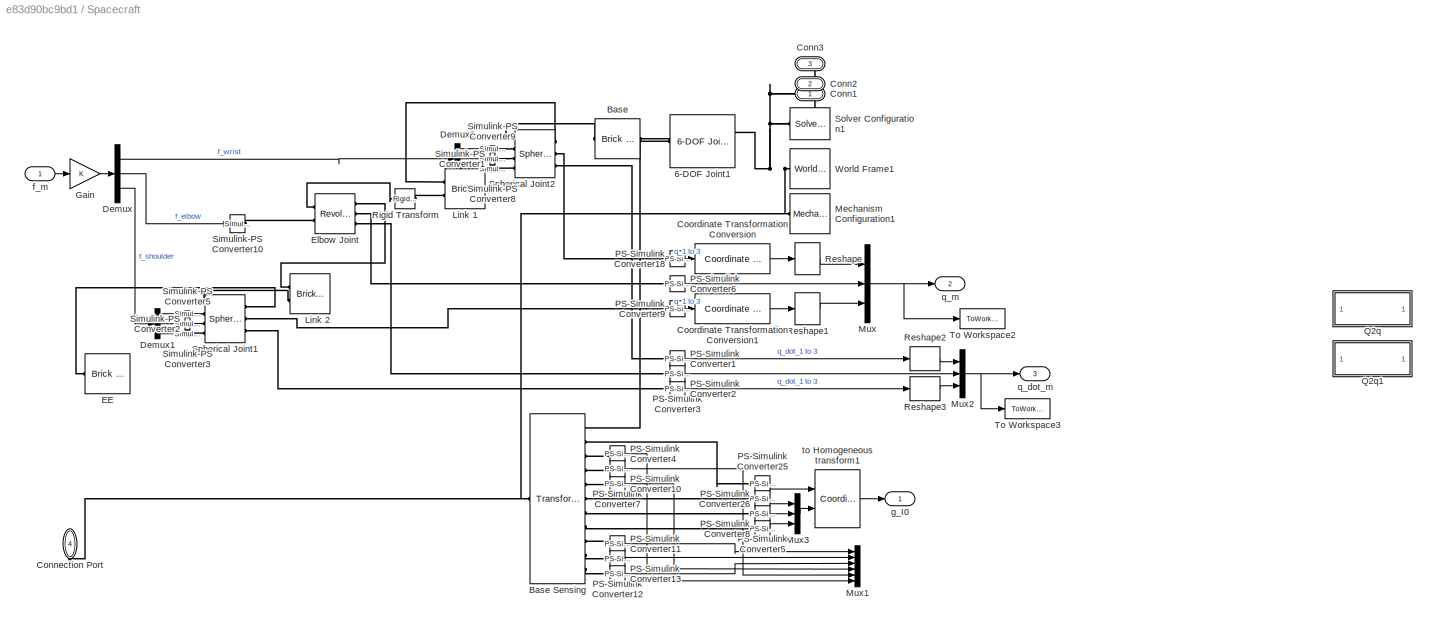
BLOCK [SubSystem] Spacecraft
  PortSchema = {"entries":[{"content":{"sides":[{"content":{"connectorIds":["In1"]},"type":"ConnectorPlacement.EquallySpacedRectSide","uuid":"01d65da0-aed5-4fe4-9b93-9c10aff6d48b"},{"content":{"connectorIds":["Out1","Out2","Out3"],"side":"RIGHT"},"type":"ConnectorPlacement.EquallySpacedRectSide","uuid":"5e72af99-c1a7-413f-ba8d-0be66721c476"},{"content":{"connectorIds":[],"side":"TOP"},"type":"ConnectorPlacement....<+433ch>
  Ports = [1, 3, 0, 0, 0, 0, 4]
  RequestExecContextInheritance = off
BLOCK [Reference] Spacecraft/6-DOF Joint1  REF=sm_lib/Joints/6-DOF Joint
  NameLocation = top
  Ports = [0, 0, 0, 0, 0, 2, 1]
  SourceBlock = sm_lib/Joints/6-DOF Joint
  SourceProductBaseCode = MS
  SourceType = 6-DOF Joint
BLOCK [Reference] Spacecraft/Base  REF=sm_lib/Body Elements/Brick Solid
  NameLocation = top
  Ports = [0, 0, 0, 0, 0, 1, 1]
  SourceBlock = sm_lib/Body Elements/Brick Solid
  SourceProductBaseCode = MS
  SourceType = Brick Solid
BLOCK [Reference] Spacecraft/Base Sensing  REF=sm_lib/Frames and
Transforms/Transform
Sensor
  Ports = [0, 0, 0, 0, 0, 1, 11]
  SourceBlock = sm_lib/Frames and\nTransforms/Transform\nSensor
  SourceProductBaseCode = MS
  SourceType = Transform\nSensor
BLOCK [PMIOPort] Spacecraft/Conn1
  Side = Right
BLOCK [PMIOPort] Spacecraft/Conn2
  Port = 2
  Side = Right
BLOCK [PMIOPort] Spacecraft/Conn3
  Port = 3
  Side = Right
BLOCK [PMIOPort] Spacecraft/Connection Port
  NameLocation = right
  Port = 4
  Side = Right
BLOCK [Reference] Spacecraft/Coordinate Transformation Conversion  REF=robotcorelib/Coordinate Transformation Conversion
  NameLocation = top
  Ports = [1, 1]
  SourceBlock = robotcorelib/Coordinate Transformation Conversion
  SourceProductBaseCode = NV,RO,RR,UV
  SourceType = robotics.slcore.internal.block.CoordinateTransformationConversion
BLOCK [Reference] Spacecraft/Coordinate Transformation Conversion1  REF=robotcorelib/Coordinate Transformation Conversion
  NameLocation = top
  Ports = [1, 1]
  SourceBlock = robotcorelib/Coordinate Transformation Conversion
  SourceProductBaseCode = NV,RO,RR,UV
  SourceType = robotics.slcore.internal.block.CoordinateTransformationConversion
BLOCK [Demux] Spacecraft/Demux
  Outputs = [3 1 3]
  Ports = [1, 3]
BLOCK [Demux] Spacecraft/Demux1
  Outputs = 3
  Ports = [1, 3]
BLOCK [Demux] Spacecraft/Demux3
  Outputs = 3
  Ports = [1, 3]
BLOCK [Reference] Spacecraft/EE  REF=sm_lib/Body Elements/Brick Solid
  Ports = [0, 0, 0, 0, 0, 1, 1]
  SourceBlock = sm_lib/Body Elements/Brick Solid
  SourceProductBaseCode = MS
  SourceType = Brick Solid
BLOCK [Reference] Spacecraft/Elbow Joint  REF=sm_lib/Joints/Revolute Joint
  Ports = [0, 0, 0, 0, 0, 2, 3]
  SourceBlock = sm_lib/Joints/Revolute Joint
  SourceProductBaseCode = MS
  SourceType = Revolute Joint
BLOCK [Gain] Spacecraft/Gain
BLOCK [Reference] Spacecraft/Link 1  REF=sm_lib/Body Elements/Brick Solid
  Ports = [0, 0, 0, 0, 0, 2, 1]
  SourceBlock = sm_lib/Body Elements/Brick Solid
  SourceProductBaseCode = MS
  SourceType = Brick Solid
BLOCK [Reference] Spacecraft/Link 2   REF=sm_lib/Body Elements/Brick Solid
  Ports = [0, 0, 0, 0, 0, 2, 1]
  SourceBlock = sm_lib/Body Elements/Brick Solid
  SourceProductBaseCode = MS
  SourceType = Brick Solid
BLOCK [Reference] Spacecraft/Mechanism Configuration1  REF=sm_lib/Utilities/Mechanism
Configuration
  NameLocation = top
  Ports = [0, 0, 0, 0, 0, 0, 1]
  SourceBlock = sm_lib/Utilities/Mechanism\nConfiguration
  SourceProductBaseCode = MS
  SourceType = Mechanism\nConfiguration
BLOCK [Mux] Spacecraft/Mux
  DisplayOption = bar
  Inputs = [3;1;3]
  Ports = [3, 1]
BLOCK [Mux] Spacecraft/Mux1
  DisplayOption = bar
  Inputs = 6
  Ports = [6, 1]
BLOCK [Mux] Spacecraft/Mux2
  DisplayOption = bar
  Inputs = 3
  Ports = [3, 1]
BLOCK [Mux] Spacecraft/Mux3
  DisplayOption = bar
  Inputs = 3
  Ports = [3, 1]
BLOCK [Reference] Spacecraft/PS-Simulink Converter1  REF=nesl_utility/PS-Simulink
Converter
  Ports = [0, 1, 0, 0, 0, 1]
  SourceBlock = nesl_utility/PS-Simulink\nConverter
  SourceProductBaseCode = PW,SS
  SourceType = PS-Simulink\nConverter
BLOCK [Reference] Spacecraft/PS-Simulink Converter10  REF=nesl_utility/PS-Simulink
Converter
  Ports = [0, 1, 0, 0, 0, 1]
  SourceBlock = nesl_utility/PS-Simulink\nConverter
  SourceProductBaseCode = PW,SS
  SourceType = PS-Simulink\nConverter
BLOCK [Reference] Spacecraft/PS-Simulink Converter11  REF=nesl_utility/PS-Simulink
Converter
  Ports = [0, 1, 0, 0, 0, 1]
  SourceBlock = nesl_utility/PS-Simulink\nConverter
  SourceProductBaseCode = PW,SS
  SourceType = PS-Simulink\nConverter
BLOCK [Reference] Spacecraft/PS-Simulink Converter12  REF=nesl_utility/PS-Simulink
Converter
  Ports = [0, 1, 0, 0, 0, 1]
  SourceBlock = nesl_utility/PS-Simulink\nConverter
  SourceProductBaseCode = PW,SS
  SourceType = PS-Simulink\nConverter
BLOCK [Reference] Spacecraft/PS-Simulink Converter13  REF=nesl_utility/PS-Simulink
Converter
  Ports = [0, 1, 0, 0, 0, 1]
  SourceBlock = nesl_utility/PS-Simulink\nConverter
  SourceProductBaseCode = PW,SS
  SourceType = PS-Simulink\nConverter
BLOCK [Reference] Spacecraft/PS-Simulink Converter18  REF=nesl_utility/PS-Simulink
Converter
  Ports = [0, 1, 0, 0, 0, 1]
  SourceBlock = nesl_utility/PS-Simulink\nConverter
  SourceProductBaseCode = PW,SS
  SourceType = PS-Simulink\nConverter
BLOCK [Reference] Spacecraft/PS-Simulink Converter2  REF=nesl_utility/PS-Simulink
Converter
  Ports = [0, 1, 0, 0, 0, 1]
  SourceBlock = nesl_utility/PS-Simulink\nConverter
  SourceProductBaseCode = PW,SS
  SourceType = PS-Simulink\nConverter
BLOCK [Reference] Spacecraft/PS-Simulink Converter25  REF=nesl_utility/PS-Simulink
Converter
  Ports = [0, 1, 0, 0, 0, 1]
  SourceBlock = nesl_utility/PS-Simulink\nConverter
  SourceProductBaseCode = PW,SS
  SourceType = PS-Simulink\nConverter
BLOCK [Reference] Spacecraft/PS-Simulink Converter26  REF=nesl_utility/PS-Simulink
Converter
  Ports = [0, 1, 0, 0, 0, 1]
  SourceBlock = nesl_utility/PS-Simulink\nConverter
  SourceProductBaseCode = PW,SS
  SourceType = PS-Simulink\nConverter
BLOCK [Reference] Spacecraft/PS-Simulink Converter3  REF=nesl_utility/PS-Simulink
Converter
  Ports = [0, 1, 0, 0, 0, 1]
  SourceBlock = nesl_utility/PS-Simulink\nConverter
  SourceProductBaseCode = PW,SS
  SourceType = PS-Simulink\nConverter
BLOCK [Reference] Spacecraft/PS-Simulink Converter4  REF=nesl_utility/PS-Simulink
Converter
  Ports = [0, 1, 0, 0, 0, 1]
  SourceBlock = nesl_utility/PS-Simulink\nConverter
  SourceProductBaseCode = PW,SS
  SourceType = PS-Simulink\nConverter
BLOCK [Reference] Spacecraft/PS-Simulink Converter5  REF=nesl_utility/PS-Simulink
Converter
  Ports = [0, 1, 0, 0, 0, 1]
  SourceBlock = nesl_utility/PS-Simulink\nConverter
  SourceProductBaseCode = PW,SS
  SourceType = PS-Simulink\nConverter
BLOCK [Reference] Spacecraft/PS-Simulink Converter6  REF=nesl_utility/PS-Simulink
Converter
  Ports = [0, 1, 0, 0, 0, 1]
  SourceBlock = nesl_utility/PS-Simulink\nConverter
  SourceProductBaseCode = PW,SS
  SourceType = PS-Simulink\nConverter
BLOCK [Reference] Spacecraft/PS-Simulink Converter7  REF=nesl_utility/PS-Simulink
Converter
  Ports = [0, 1, 0, 0, 0, 1]
  SourceBlock = nesl_utility/PS-Simulink\nConverter
  SourceProductBaseCode = PW,SS
  SourceType = PS-Simulink\nConverter
BLOCK [Reference] Spacecraft/PS-Simulink Converter8  REF=nesl_utility/PS-Simulink
Converter
  Ports = [0, 1, 0, 0, 0, 1]
  SourceBlock = nesl_utility/PS-Simulink\nConverter
  SourceProductBaseCode = PW,SS
  SourceType = PS-Simulink\nConverter
BLOCK [Reference] Spacecraft/PS-Simulink Converter9  REF=nesl_utility/PS-Simulink
Converter
  Ports = [0, 1, 0, 0, 0, 1]
  SourceBlock = nesl_utility/PS-Simulink\nConverter
  SourceProductBaseCode = PW,SS
  SourceType = PS-Simulink\nConverter
BLOCK [SubSystem] Spacecraft/Q2q
  Commented = on
  ErrorFcn = Stateflow.Translate.translate
  PermitHierarchicalResolution = ExplicitOnly
  Ports = [1, 1]
  RequestExecContextInheritance = off
  SFBlockType = MATLAB Function
  TreatAsAtomicUnit = on
BLOCK [Demux] Spacecraft/Q2q/ Demux 
  Outputs = 1
  Ports = [1, 1]
BLOCK [S-Function] Spacecraft/Q2q/ SFunction 
  EnableBusSupport = on
  FunctionName = sf_sfun
  PortCounts = [1 2]
  Ports = [1, 2]
  SFcnIsStateOwnerBlock = off
  SFunctionDeploymentMode = off
  Tag = Stateflow S-Function 72
BLOCK [Terminator] Spacecraft/Q2q/ Terminator 
BLOCK [Inport] Spacecraft/Q2q/Q
BLOCK [Outport] Spacecraft/Q2q/qm
BLOCK [SubSystem] Spacecraft/Q2q1
  Commented = on
  ErrorFcn = Stateflow.Translate.translate
  PermitHierarchicalResolution = ExplicitOnly
  Ports = [1, 1]
  RequestExecContextInheritance = off
  SFBlockType = MATLAB Function
  TreatAsAtomicUnit = on
BLOCK [Demux] Spacecraft/Q2q1/ Demux 
  Outputs = 1
  Ports = [1, 1]
BLOCK [S-Function] Spacecraft/Q2q1/ SFunction 
  EnableBusSupport = on
  FunctionName = sf_sfun
  PortCounts = [1 2]
  Ports = [1, 2]
  SFcnIsStateOwnerBlock = off
  SFunctionDeploymentMode = off
  Tag = Stateflow S-Function 73
BLOCK [Terminator] Spacecraft/Q2q1/ Terminator 
BLOCK [Inport] Spacecraft/Q2q1/Q
BLOCK [Outport] Spacecraft/Q2q1/qm
BLOCK [Reshape] Spacecraft/Reshape
  Ports = [1, 1]
BLOCK [Reshape] Spacecraft/Reshape1
  Ports = [1, 1]
BLOCK [Reshape] Spacecraft/Reshape2
  Ports = [1, 1]
BLOCK [Reshape] Spacecraft/Reshape3
  Ports = [1, 1]
BLOCK [Reference] Spacecraft/Rigid Transform  REF=sm_lib/Frames and
Transforms/Rigid
Transform
  Ports = [0, 0, 0, 0, 0, 1, 1]
  SourceBlock = sm_lib/Frames and\nTransforms/Rigid\nTransform
  SourceProductBaseCode = MS
  SourceType = Rigid\nTransform
BLOCK [Reference] Spacecraft/Simulink-PS Converter1  REF=nesl_utility/Simulink-PS
Converter
  Ports = [1, 0, 0, 0, 0, 0, 1]
  SourceBlock = nesl_utility/Simulink-PS\nConverter
  SourceProductBaseCode = PW,SS
  SourceType = Simulink-PS\nConverter
BLOCK [Reference] Spacecraft/Simulink-PS Converter10  REF=nesl_utility/Simulink-PS
Converter
  NameLocation = left
  Ports = [1, 0, 0, 0, 0, 0, 1]
  SourceBlock = nesl_utility/Simulink-PS\nConverter
  SourceProductBaseCode = PW,SS
  SourceType = Simulink-PS\nConverter
BLOCK [Reference] Spacecraft/Simulink-PS Converter2  REF=nesl_utility/Simulink-PS
Converter
  Ports = [1, 0, 0, 0, 0, 0, 1]
  SourceBlock = nesl_utility/Simulink-PS\nConverter
  SourceProductBaseCode = PW,SS
  SourceType = Simulink-PS\nConverter
BLOCK [Reference] Spacecraft/Simulink-PS Converter3  REF=nesl_utility/Simulink-PS
Converter
  NameLocation = left
  Ports = [1, 0, 0, 0, 0, 0, 1]
  SourceBlock = nesl_utility/Simulink-PS\nConverter
  SourceProductBaseCode = PW,SS
  SourceType = Simulink-PS\nConverter
BLOCK [Reference] Spacecraft/Simulink-PS Converter5  REF=nesl_utility/Simulink-PS
Converter
  Ports = [1, 0, 0, 0, 0, 0, 1]
  SourceBlock = nesl_utility/Simulink-PS\nConverter
  SourceProductBaseCode = PW,SS
  SourceType = Simulink-PS\nConverter
BLOCK [Reference] Spacecraft/Simulink-PS Converter8  REF=nesl_utility/Simulink-PS
Converter
  NameLocation = left
  Ports = [1, 0, 0, 0, 0, 0, 1]
  SourceBlock = nesl_utility/Simulink-PS\nConverter
  SourceProductBaseCode = PW,SS
  SourceType = Simulink-PS\nConverter
BLOCK [Reference] Spacecraft/Simulink-PS Converter9  REF=nesl_utility/Simulink-PS
Converter
  Ports = [1, 0, 0, 0, 0, 0, 1]
  SourceBlock = nesl_utility/Simulink-PS\nConverter
  SourceProductBaseCode = PW,SS
  SourceType = Simulink-PS\nConverter
BLOCK [Reference] Spacecraft/Solver Configuration1  REF=nesl_utility/Solver
Configuration
  NameLocation = top
  Ports = [0, 0, 0, 0, 0, 0, 1]
  SourceBlock = nesl_utility/Solver\nConfiguration
  SourceProductBaseCode = PW,SS
  SourceType = Solver\nConfiguration
BLOCK [Reference] Spacecraft/Spherical Joint1  REF=sm_lib/Joints/Spherical
Joint
  Ports = [0, 0, 0, 0, 0, 4, 3]
  SourceBlock = sm_lib/Joints/Spherical\nJoint
  SourceProductBaseCode = MS
  SourceType = Spherical\nJoint
BLOCK [Reference] Spacecraft/Spherical Joint2  REF=sm_lib/Joints/Spherical
Joint
  Ports = [0, 0, 0, 0, 0, 4, 3]
  SourceBlock = sm_lib/Joints/Spherical\nJoint
  SourceProductBaseCode = MS
  SourceType = Spherical\nJoint
BLOCK [ToWorkspace] Spacecraft/To Workspace2
  FixptAsFi = on
  MaxDataPoints = inf
  Ports = [1]
  SampleTime = -1
  SaveFormat = Timeseries
  VariableName = q_m
BLOCK [ToWorkspace] Spacecraft/To Workspace3
  FixptAsFi = on
  MaxDataPoints = inf
  Ports = [1]
  SampleTime = -1
  SaveFormat = Timeseries
  VariableName = q_dot
BLOCK [Reference] Spacecraft/World Frame1  REF=sm_lib/Frames and
Transforms/World Frame
  NameLocation = top
  Ports = [0, 0, 0, 0, 0, 0, 1]
  SourceBlock = sm_lib/Frames and\nTransforms/World Frame
  SourceProductBaseCode = MS
  SourceType = World Frame
BLOCK [Inport] Spacecraft/f_m
BLOCK [Outport] Spacecraft/g_I0
BLOCK [Outport] Spacecraft/q_dot_m
  Port = 3
BLOCK [Outport] Spacecraft/q_m
  Port = 2
BLOCK [Reference] Spacecraft/to Homogeneous transform1  REF=robotcorelib/Coordinate Transformation Conversion
  Ports = [2, 1]
  SourceBlock = robotcorelib/Coordinate Transformation Conversion
  SourceProductBaseCode = NV,RO,RR,UV
  SourceType = robotics.slcore.internal.block.CoordinateTransformationConversion
BLOCK [SubSystem] Target
  PortSchema = {"entries":[{"content":{"sides":[{"content":{"connectorIds":[]},"type":"ConnectorPlacement.EquallySpacedRectSide","uuid":"b5a29bf3-c26b-4b92-98db-a2715f798c70"},{"content":{"connectorIds":["Out1"],"side":"RIGHT"},"type":"ConnectorPlacement.EquallySpacedRectSide","uuid":"f1142bb2-21a4-4cd3-ab86-076074dcca49"},{"content":{"connectorIds":[],"side":"TOP"},"type":"ConnectorPlacement.EquallySpacedRectSi...<+414ch>
  Ports = [0, 1, 0, 0, 0, 0, 4]
  RequestExecContextInheritance = off
BLOCK [Reference] Target/6-DOF Joint1  REF=sm_lib/Joints/6-DOF Joint
  Ports = [0, 0, 0, 0, 0, 1, 7]
  SourceBlock = sm_lib/Joints/6-DOF Joint
  SourceProductBaseCode = MS
  SourceType = 6-DOF Joint
BLOCK [Reference] Target/Base Sensing1  REF=sm_lib/Frames and
Transforms/Transform
Sensor
  Ports = [0, 0, 0, 0, 0, 1, 5]
  SourceBlock = sm_lib/Frames and\nTransforms/Transform\nSensor
  SourceProductBaseCode = MS
  SourceType = Transform\nSensor
BLOCK [Reference] Target/Base Sensing2  REF=sm_lib/Frames and
Transforms/Transform
Sensor
  Ports = [0, 0, 0, 0, 0, 1, 5]
  SourceBlock = sm_lib/Frames and\nTransforms/Transform\nSensor
  SourceProductBaseCode = MS
  SourceType = Transform\nSensor
BLOCK [PMIOPort] Target/Connection Port
  NameLocation = right
  Port = 4
  Side = Right
BLOCK [PMIOPort] Target/Connection Port1
  Side = Right
BLOCK [PMIOPort] Target/Connection Port2
  Port = 2
  Side = Right
BLOCK [PMIOPort] Target/Connection Port3
  Port = 3
  Side = Right
BLOCK [Reference] Target/Coordinate Transformation Conversion  REF=robotcorelib/Coordinate Transformation Conversion
  Ports = [2, 1]
  SourceBlock = robotcorelib/Coordinate Transformation Conversion
  SourceProductBaseCode = NV,RO,RR,UV
  SourceType = robotics.slcore.internal.block.CoordinateTransformationConversion
BLOCK [Reference] Target/Coordinate Transformation Conversion1  REF=robotcorelib/Coordinate Transformation Conversion
  Ports = [2, 1]
  SourceBlock = robotcorelib/Coordinate Transformation Conversion
  SourceProductBaseCode = NV,RO,RR,UV
  SourceType = robotics.slcore.internal.block.CoordinateTransformationConversion
BLOCK [Goto] Target/Goto1
  GotoTag = V_It
  TagVisibility = global
BLOCK [Goto] Target/Goto4
  GotoTag = g_It
  TagVisibility = global
BLOCK [Reference] Target/Grasping Point t  REF=sm_lib/Frames and
Transforms/Rigid
Transform
  Ports = [0, 0, 0, 0, 0, 1, 1]
  SourceBlock = sm_lib/Frames and\nTransforms/Rigid\nTransform
  SourceProductBaseCode = MS
  SourceType = Rigid\nTransform
BLOCK [Product] Target/Matrix Multiply
  Multiplication = Matrix(*)
  Ports = [2, 1]
BLOCK [Mux] Target/Mux
  DisplayOption = bar
  Inputs = 6
  Ports = [6, 1]
BLOCK [Mux] Target/Mux4
  DisplayOption = bar
  Inputs = 3
  Ports = [3, 1]
BLOCK [Mux] Target/Mux8
  DisplayOption = bar
  Inputs = 3
  Ports = [3, 1]
BLOCK [Reference] Target/PS-Simulink Converter1  REF=nesl_utility/PS-Simulink
Converter
  Ports = [0, 1, 0, 0, 0, 1]
  SourceBlock = nesl_utility/PS-Simulink\nConverter
  SourceProductBaseCode = PW,SS
  SourceType = PS-Simulink\nConverter
BLOCK [Reference] Target/PS-Simulink Converter13  REF=nesl_utility/PS-Simulink
Converter
  Ports = [0, 1, 0, 0, 0, 1]
  SourceBlock = nesl_utility/PS-Simulink\nConverter
  SourceProductBaseCode = PW,SS
  SourceType = PS-Simulink\nConverter
BLOCK [Reference] Target/PS-Simulink Converter16  REF=nesl_utility/PS-Simulink
Converter
  Ports = [0, 1, 0, 0, 0, 1]
  SourceBlock = nesl_utility/PS-Simulink\nConverter
  SourceProductBaseCode = PW,SS
  SourceType = PS-Simulink\nConverter
BLOCK [Reference] Target/PS-Simulink Converter2  REF=nesl_utility/PS-Simulink
Converter
  Ports = [0, 1, 0, 0, 0, 1]
  SourceBlock = nesl_utility/PS-Simulink\nConverter
  SourceProductBaseCode = PW,SS
  SourceType = PS-Simulink\nConverter
BLOCK [Reference] Target/PS-Simulink Converter20  REF=nesl_utility/PS-Simulink
Converter
  Ports = [0, 1, 0, 0, 0, 1]
  SourceBlock = nesl_utility/PS-Simulink\nConverter
  SourceProductBaseCode = PW,SS
  SourceType = PS-Simulink\nConverter
BLOCK [Reference] Target/PS-Simulink Converter21  REF=nesl_utility/PS-Simulink
Converter
  Ports = [0, 1, 0, 0, 0, 1]
  SourceBlock = nesl_utility/PS-Simulink\nConverter
  SourceProductBaseCode = PW,SS
  SourceType = PS-Simulink\nConverter
BLOCK [Reference] Target/PS-Simulink Converter22  REF=nesl_utility/PS-Simulink
Converter
  Ports = [0, 1, 0, 0, 0, 1]
  SourceBlock = nesl_utility/PS-Simulink\nConverter
  SourceProductBaseCode = PW,SS
  SourceType = PS-Simulink\nConverter
BLOCK [Reference] Target/PS-Simulink Converter3  REF=nesl_utility/PS-Simulink
Converter
  Ports = [0, 1, 0, 0, 0, 1]
  SourceBlock = nesl_utility/PS-Simulink\nConverter
  SourceProductBaseCode = PW,SS
  SourceType = PS-Simulink\nConverter
BLOCK [Reference] Target/PS-Simulink Converter4  REF=nesl_utility/PS-Simulink
Converter
  Ports = [0, 1, 0, 0, 0, 1]
  SourceBlock = nesl_utility/PS-Simulink\nConverter
  SourceProductBaseCode = PW,SS
  SourceType = PS-Simulink\nConverter
BLOCK [Reference] Target/PS-Simulink Converter5  REF=nesl_utility/PS-Simulink
Converter
  Ports = [0, 1, 0, 0, 0, 1]
  SourceBlock = nesl_utility/PS-Simulink\nConverter
  SourceProductBaseCode = PW,SS
  SourceType = PS-Simulink\nConverter
BLOCK [Reference] Target/PS-Simulink Converter6  REF=nesl_utility/PS-Simulink
Converter
  Ports = [0, 1, 0, 0, 0, 1]
  SourceBlock = nesl_utility/PS-Simulink\nConverter
  SourceProductBaseCode = PW,SS
  SourceType = PS-Simulink\nConverter
BLOCK [Reference] Target/PS-Simulink Converter7  REF=nesl_utility/PS-Simulink
Converter
  Ports = [0, 1, 0, 0, 0, 1]
  SourceBlock = nesl_utility/PS-Simulink\nConverter
  SourceProductBaseCode = PW,SS
  SourceType = PS-Simulink\nConverter
BLOCK [Reference] Target/PS-Simulink Converter8  REF=nesl_utility/PS-Simulink
Converter
  Ports = [0, 1, 0, 0, 0, 1]
  SourceBlock = nesl_utility/PS-Simulink\nConverter
  SourceProductBaseCode = PW,SS
  SourceType = PS-Simulink\nConverter
BLOCK [Reference] Target/PS-Simulink Converter9  REF=nesl_utility/PS-Simulink
Converter
  Ports = [0, 1, 0, 0, 0, 1]
  SourceBlock = nesl_utility/PS-Simulink\nConverter
  SourceProductBaseCode = PW,SS
  SourceType = PS-Simulink\nConverter
BLOCK [Reference] Target/Target  REF=sm_lib/Body Elements/Brick Solid
  Ports = [0, 0, 0, 0, 0, 2, 1]
  SourceBlock = sm_lib/Body Elements/Brick Solid
  SourceProductBaseCode = MS
  SourceType = Brick Solid
BLOCK [ToWorkspace] Target/To Workspace
  FixptAsFi = on
  MaxDataPoints = inf
  Ports = [1]
  SampleTime = -1
  SaveFormat = Timeseries
  VariableName = V_It
BLOCK [ToWorkspace] Target/To Workspace1
  FixptAsFi = on
  MaxDataPoints = inf
  Ports = [1]
  SampleTime = -1
  SaveFormat = Timeseries
  VariableName = g_t
BLOCK [Outport] Target/g_It
BLOCK [ToWorkspace] To Workspace
  FixptAsFi = on
  MaxDataPoints = inf
  Ports = [1]
  SampleTime = -1
  SaveFormat = Timeseries
  VariableName = err_q
BLOCK [ToWorkspace] To Workspace1
  FixptAsFi = on
  MaxDataPoints = inf
  Ports = [1]
  SampleTime = -1
  SaveFormat = Timeseries
  VariableName = err_V
BLOCK [ToWorkspace] To Workspace2
  FixptAsFi = on
  MaxDataPoints = inf
  Ports = [1]
  SampleTime = -1
  SaveFormat = Timeseries
  VariableName = err_d
BLOCK [ToWorkspace] To Workspace3
  FixptAsFi = on
  MaxDataPoints = inf
  Ports = [1]
  SampleTime = -1
  SaveFormat = Timeseries
  VariableName = err_w
BLOCK [Scope] angular regulation error
  Floating = off
  NumInputPorts = 1
  Ports = [1]
  ScopeSpecificationString = Simulink.scopes.TimeScopeBlockCfg('CurrentConfiguration', extmgr.ConfigurationSet(extmgr.Configuration('Core','General UI',true),extmgr.Configuration('Core','Source UI',true),extmgr.Configuration('Sources','WiredSimulink',true,'DataLoggingVariableName','ScopeData1'),extmgr.Configuration('Visuals','Time Domain',true,'SerializedDisplays',{struct('MinYLimReal','1.49302','MaxYLimReal','1.53789','YLabe...<+1408ch>
BLOCK [Scope] angular velocity regulation error
  Floating = off
  NumInputPorts = 1
  Ports = [1]
  ScopeSpecificationString = Simulink.scopes.TimeScopeBlockCfg('CurrentConfiguration', extmgr.ConfigurationSet(extmgr.Configuration('Core','General UI',true),extmgr.Configuration('Core','Source UI',true),extmgr.Configuration('Sources','WiredSimulink',true,'DataLoggingVariableName','ScopeData3'),extmgr.Configuration('Visuals','Time Domain',true,'SerializedDisplays',{struct('MinYLimReal','-0.05625','MaxYLimReal','0.00625','YLab...<+1461ch>
BLOCK [SubSystem] gradient_of_Eg
  ErrorFcn = Stateflow.Translate.translate
  PermitHierarchicalResolution = ExplicitOnly
  Ports = [1, 1]
  RequestExecContextInheritance = off
  SFBlockType = MATLAB Function
  TreatAsAtomicUnit = on
BLOCK [Demux] gradient_of_Eg/ Demux 
  Outputs = 1
  Ports = [1, 1]
BLOCK [S-Function] gradient_of_Eg/ SFunction 
  EnableBusSupport = on
  FunctionName = sf_sfun
  PortCounts = [1 2]
  Ports = [1, 2]
  SFcnIsStateOwnerBlock = off
  SFunctionDeploymentMode = off
  Tag = Stateflow S-Function 2
BLOCK [Terminator] gradient_of_Eg/ Terminator 
BLOCK [Outport] gradient_of_Eg/Nabla_Eg
BLOCK [Inport] gradient_of_Eg/g_te
BLOCK [Scope] position regulation error
  Floating = off
  NumInputPorts = 1
  Ports = [1]
  ScopeSpecificationString = Simulink.scopes.TimeScopeBlockCfg('CurrentConfiguration', extmgr.ConfigurationSet(extmgr.Configuration('Core','General UI',true),extmgr.Configuration('Core','Source UI',true),extmgr.Configuration('Sources','WiredSimulink',true,'DataLoggingVariableName','ScopeData4'),extmgr.Configuration('Visuals','Time Domain',true,'SerializedDisplays',{struct('MinYLimReal','5.9585','MaxYLimReal','6.00461','YLabel...<+1404ch>
BLOCK [Scope] velocity regulation error
  Floating = off
  NumInputPorts = 1
  Ports = [1]
  ScopeSpecificationString = Simulink.scopes.TimeScopeBlockCfg('CurrentConfiguration', extmgr.ConfigurationSet(extmgr.Configuration('Core','General UI',true),extmgr.Configuration('Core','Source UI',true),extmgr.Configuration('Sources','WiredSimulink',true,'DataLoggingVariableName','ScopeData5'),extmgr.Configuration('Visuals','Time Domain',true,'SerializedDisplays',{struct('MinYLimReal','-153865.68934','MaxYLimReal','294948.75...<+1479ch>
ANNOTATION (root): Controller
ANNOTATION (root): Feedback Transformation
ANNOTATION (root): Report
ANNOTATION Inverse Dynamics3: f_m
ANNOTATION Inverse Dynamics3/C_hat: C_hat
ANNOTATION Inverse Dynamics3/Inverse Dynamics: Inverse dynamics
ANNOTATION Inverse Dynamics3/Inverse Dynamics: Subsystem
LINE Add1:1 -> Integrator:1
NET Add2:1 -> Gain:1, Scope:1
NET Add:1 -> Matrix Multiply5:2, Scope1:1
NET Bus Creator:1 -> Bus Selector:1, Dynamic Parameters:2, Inverse Dynamics3:2
LINE Bus Selector:1 -> Matrix Multiply4:2
LINE Constant3:1 -> Matrix Multiply6:2
LINE Constant4:1 -> Matrix Multiply1:1
LINE Constant5:1 -> Matrix Multiply2:1
LINE Constant6:1 -> Matrix Multiply3:1
LINE Constant7:1 -> Matrix Multiply7:2
LINE Dynamic Parameters/ :1 -> Dynamic Parameters/Bus Creator2:1
NET Dynamic Parameters/ :2 -> Dynamic Parameters/Bus Creator2:2, Dynamic Parameters/Mass Matrix Blocks:2
NET Dynamic Parameters/ :3 -> Dynamic Parameters/Bus Creator2:3, Dynamic Parameters/Mass Matrix Blocks:3
LINE Dynamic Parameters/A_connection/Divide:1 -> Dynamic Parameters/A_connection/A_connection:1
LINE Dynamic Parameters/A_connection/M0:1 -> Dynamic Parameters/A_connection/Divide:1
LINE Dynamic Parameters/A_connection/M0m:1 -> Dynamic Parameters/A_connection/Divide:2
NET Dynamic Parameters/A_connection:1 -> Dynamic Parameters/Goto1:1, Dynamic Parameters/V_I0:2
LINE Dynamic Parameters/Bus Creator2:1 -> Dynamic Parameters/Goto5:1
LINE Dynamic Parameters/Bus Creator:1 -> Dynamic Parameters/Goto:1
LINE Dynamic Parameters/Bus Selector:1 -> Dynamic Parameters/ :1
LINE Dynamic Parameters/Bus Selector:2 -> Dynamic Parameters/V_I0:3
LINE Dynamic Parameters/Constant1:1 -> Dynamic Parameters/MATLAB Function1:2
LINE Dynamic Parameters/Constant2:1 -> Dynamic Parameters/ :2
LINE Dynamic Parameters/Constant3:1 -> Dynamic Parameters/Mass Matrix Blocks:4
LINE Dynamic Parameters/Constant:1 -> Dynamic Parameters/Mass Matrix Blocks:1
NET Dynamic Parameters/MATLAB Function1:1 -> Dynamic Parameters/Goto4:1, Dynamic Parameters/V_I0:1, Dynamic Parameters/V_I0:4
LINE Dynamic Parameters/Mass Matrix Blocks/Add:1 -> Dynamic Parameters/Mass Matrix Blocks/Matrix Multiply4:2
NET Dynamic Parameters/Mass Matrix Blocks/Constant:1 -> Dynamic Parameters/Mass Matrix Blocks/Matrix Multiply4:3, Dynamic Parameters/Mass Matrix Blocks/Transpose4:1
NET Dynamic Parameters/Mass Matrix Blocks/Lm0:1 -> Dynamic Parameters/Mass Matrix Blocks/Matrix Multiply3:3, Dynamic Parameters/Mass Matrix Blocks/Transpose3:1
NET Dynamic Parameters/Mass Matrix Blocks/Lm:1 -> Dynamic Parameters/Mass Matrix Blocks/Matrix Multiply1:4, Dynamic Parameters/Mass Matrix Blocks/Matrix Multiply2:4, Dynamic Parameters/Mass Matrix Blocks/Transpose2:1
LINE Dynamic Parameters/Mass Matrix Blocks/MATLAB Function:1 -> Dynamic Parameters/Mass Matrix Blocks/Add:1
NET Dynamic Parameters/Mass Matrix Blocks/MATLAB Function:2 -> Dynamic Parameters/Mass Matrix Blocks/Goto5:1, Dynamic Parameters/Mass Matrix Blocks/Matrix Multiply1:3, Dynamic Parameters/Mass Matrix Blocks/Matrix Multiply2:3, Dynamic Parameters/Mass Matrix Blocks/Matrix Multiply3:2
LINE Dynamic Parameters/Mass Matrix Blocks/Matrix Multiply1:1 -> Dynamic Parameters/Mass Matrix Blocks/M0m:1
LINE Dynamic Parameters/Mass Matrix Blocks/Matrix Multiply2:1 -> Dynamic Parameters/Mass Matrix Blocks/Mm:1
LINE Dynamic Parameters/Mass Matrix Blocks/Matrix Multiply3:1 -> Dynamic Parameters/Mass Matrix Blocks/Add:2
NET Dynamic Parameters/Mass Matrix Blocks/Matrix Multiply4:1 -> Dynamic Parameters/Mass Matrix Blocks/M0:1, Dynamic Parameters/Mass Matrix Blocks/To Workspace2:1
LINE Dynamic Parameters/Mass Matrix Blocks/Transpose1:1 -> Dynamic Parameters/Mass Matrix Blocks/Matrix Multiply2:1
LINE Dynamic Parameters/Mass Matrix Blocks/Transpose2:1 -> Dynamic Parameters/Mass Matrix Blocks/Matrix Multiply2:2
NET Dynamic Parameters/Mass Matrix Blocks/Transpose3:1 -> Dynamic Parameters/Mass Matrix Blocks/Matrix Multiply1:2, Dynamic Parameters/Mass Matrix Blocks/Matrix Multiply3:1
NET Dynamic Parameters/Mass Matrix Blocks/Transpose4:1 -> Dynamic Parameters/Mass Matrix Blocks/Matrix Multiply1:1, Dynamic Parameters/Mass Matrix Blocks/Matrix Multiply4:1
NET Dynamic Parameters/Mass Matrix Blocks/Xi_m_matrix:1 -> Dynamic Parameters/Mass Matrix Blocks/Matrix Multiply1:5, Dynamic Parameters/Mass Matrix Blocks/Matrix Multiply2:5, Dynamic Parameters/Mass Matrix Blocks/Transpose1:1
LINE Dynamic Parameters/Mass Matrix Blocks/diag_M:1 -> Dynamic Parameters/Mass Matrix Blocks/MATLAB Function:1
NET Dynamic Parameters/Mass Matrix Blocks:1 -> Dynamic Parameters/A_connection:1, Dynamic Parameters/Bus Creator:1
NET Dynamic Parameters/Mass Matrix Blocks:2 -> Dynamic Parameters/A_connection:2, Dynamic Parameters/Bus Creator:2
LINE Dynamic Parameters/Mass Matrix Blocks:3 -> Dynamic Parameters/Bus Creator:3
NET Dynamic Parameters/V_I0:1 -> Dynamic Parameters/Goto3:1, Dynamic Parameters/To Workspace1:1
LINE Dynamic Parameters/g_I0:1 -> Dynamic Parameters/MATLAB Function1:1
LINE Dynamic Parameters/q_m:1 -> Dynamic Parameters/Bus Selector:1
LINE Gain1:1 -> Matrix Multiply7:1
LINE Gain:1 -> Spacecraft:1
LINE Integrator:1 -> Matrix Multiply3:2
LINE Inverse Dynamics3/A_dot:1 -> Inverse Dynamics3/Inverse Dynamics:5
LINE Inverse Dynamics3/Bus Selector1:1 -> Inverse Dynamics3/C_hat:4
LINE Inverse Dynamics3/Bus Selector1:2 -> Inverse Dynamics3/C_hat:5
NET Inverse Dynamics3/Bus Selector2:1 -> Inverse Dynamics3/A_dot:2, Inverse Dynamics3/C_hat:1, Inverse Dynamics3/M0_dot:2, Inverse Dynamics3/N_hat:1
NET Inverse Dynamics3/Bus Selector2:2 -> Inverse Dynamics3/C_hat:2, Inverse Dynamics3/N_hat:2
NET Inverse Dynamics3/Bus Selector:1 -> Inverse Dynamics3/C_hat:6, Inverse Dynamics3/Inverse Dynamics:2, Inverse Dynamics3/N_hat:5
LINE Inverse Dynamics3/Bus Selector:2 -> Inverse Dynamics3/C_hat:7
LINE Inverse Dynamics3/Bus Selector:3 -> Inverse Dynamics3/Inverse Dynamics:3
LINE Inverse Dynamics3/C_hat/<Lm0>:1 -> Inverse Dynamics3/C_hat/M_partials:5
LINE Inverse Dynamics3/C_hat/<Lm>:1 -> Inverse Dynamics3/C_hat/M_partials:4
LINE Inverse Dynamics3/C_hat/<M0>1:1 -> Inverse Dynamics3/C_hat/AMA_partial:2
LINE Inverse Dynamics3/C_hat/<M0>:1 -> Inverse Dynamics3/C_hat/A_partial:2
LINE Inverse Dynamics3/C_hat/<M0m>:1 -> Inverse Dynamics3/C_hat/A_partial:5
LINE Inverse Dynamics3/C_hat/A:1 -> Inverse Dynamics3/C_hat/AMA_partial:3
LINE Inverse Dynamics3/C_hat/AMA_partial:1 -> Inverse Dynamics3/C_hat/Mm_hat_partial:2
NET Inverse Dynamics3/C_hat/A_partial:1 -> Inverse Dynamics3/C_hat/AMA_partial:4, Inverse Dynamics3/C_hat/A_partial1:1, Inverse Dynamics3/C_hat/Goto2:1
LINE Inverse Dynamics3/C_hat/C_hat1:1 -> Inverse Dynamics3/C_hat/C_hat:1
LINE Inverse Dynamics3/C_hat/Constant:1 -> Inverse Dynamics3/C_hat/Lm_partials:2
LINE Inverse Dynamics3/C_hat/From4:1 -> Inverse Dynamics3/C_hat/AMA_partial:5
LINE Inverse Dynamics3/C_hat/From6:1 -> Inverse Dynamics3/C_hat/A_partial:6
LINE Inverse Dynamics3/C_hat/From7:1 -> Inverse Dynamics3/C_hat/M_partials:6
NET Inverse Dynamics3/C_hat/Lm_partials/Constant:1 -> Inverse Dynamics3/C_hat/Lm_partials/Lm0partial:3, Inverse Dynamics3/C_hat/Lm_partials/Lmpartial:3
LINE Inverse Dynamics3/C_hat/Lm_partials/Lm0partial:1 -> Inverse Dynamics3/C_hat/Lm_partials/Lm0_partial:1
LINE Inverse Dynamics3/C_hat/Lm_partials/Lmpartial:1 -> Inverse Dynamics3/C_hat/Lm_partials/Lm_partial:1
NET Inverse Dynamics3/C_hat/Lm_partials/Xi_m:1 -> Inverse Dynamics3/C_hat/Lm_partials/Lm0partial:2, Inverse Dynamics3/C_hat/Lm_partials/Lmpartial:2
NET Inverse Dynamics3/C_hat/Lm_partials/q_m:1 -> Inverse Dynamics3/C_hat/Lm_partials/Lm0partial:1, Inverse Dynamics3/C_hat/Lm_partials/Lmpartial:1
LINE Inverse Dynamics3/C_hat/Lm_partials:1 -> Inverse Dynamics3/C_hat/M_partials:2
LINE Inverse Dynamics3/C_hat/Lm_partials:2 -> Inverse Dynamics3/C_hat/M_partials:3
LINE Inverse Dynamics3/C_hat/M_partials/ M0partial:1 -> Inverse Dynamics3/C_hat/M_partials/M0_partial:1
NET Inverse Dynamics3/C_hat/M_partials/Constant1:1 -> Inverse Dynamics3/C_hat/M_partials/M0mpartial:9, Inverse Dynamics3/C_hat/M_partials/Mmpartial:2
NET Inverse Dynamics3/C_hat/M_partials/Constant:1 -> Inverse Dynamics3/C_hat/M_partials/ M0partial:4, Inverse Dynamics3/C_hat/M_partials/M0mpartial:5
NET Inverse Dynamics3/C_hat/M_partials/From8:1 -> Inverse Dynamics3/C_hat/M_partials/ M0partial:5, Inverse Dynamics3/C_hat/M_partials/M0mpartial:6, Inverse Dynamics3/C_hat/M_partials/Mmpartial:4
NET Inverse Dynamics3/C_hat/M_partials/Lm0:1 -> Inverse Dynamics3/C_hat/M_partials/ M0partial:2, Inverse Dynamics3/C_hat/M_partials/M0mpartial:4
NET Inverse Dynamics3/C_hat/M_partials/Lm0_partial:1 -> Inverse Dynamics3/C_hat/M_partials/ M0partial:6, Inverse Dynamics3/C_hat/M_partials/M0mpartial:7
NET Inverse Dynamics3/C_hat/M_partials/Lm:1 -> Inverse Dynamics3/C_hat/M_partials/M0mpartial:3, Inverse Dynamics3/C_hat/M_partials/Mmpartial:3
NET Inverse Dynamics3/C_hat/M_partials/Lm_partial:1 -> Inverse Dynamics3/C_hat/M_partials/M0mpartial:8, Inverse Dynamics3/C_hat/M_partials/Mmpartial:5
LINE Inverse Dynamics3/C_hat/M_partials/M0mpartial:1 -> Inverse Dynamics3/C_hat/M_partials/M0m_partial:1
LINE Inverse Dynamics3/C_hat/M_partials/Mmpartial:1 -> Inverse Dynamics3/C_hat/M_partials/Mm_partial:1
NET Inverse Dynamics3/C_hat/M_partials/V:1 -> Inverse Dynamics3/C_hat/M_partials/ M0partial:3, Inverse Dynamics3/C_hat/M_partials/M0mpartial:2
NET Inverse Dynamics3/C_hat/M_partials/q_m:1 -> Inverse Dynamics3/C_hat/M_partials/ M0partial:1, Inverse Dynamics3/C_hat/M_partials/M0mpartial:1, Inverse Dynamics3/C_hat/M_partials/Mmpartial:1
NET Inverse Dynamics3/C_hat/M_partials:1 -> Inverse Dynamics3/C_hat/AMA_partial:6, Inverse Dynamics3/C_hat/A_partial:3, Inverse Dynamics3/C_hat/Goto1:1, Inverse Dynamics3/C_hat/M0_partial:1
LINE Inverse Dynamics3/C_hat/M_partials:2 -> Inverse Dynamics3/C_hat/A_partial:4
LINE Inverse Dynamics3/C_hat/M_partials:3 -> Inverse Dynamics3/C_hat/Mm_hat_partial:3
LINE Inverse Dynamics3/C_hat/Mm_hat_partial:1 -> Inverse Dynamics3/C_hat/C_hat1:2
LINE Inverse Dynamics3/C_hat/q_dot_m1:1 -> Inverse Dynamics3/C_hat/C_hat1:3
NET Inverse Dynamics3/C_hat/q_m1:1 -> Inverse Dynamics3/C_hat/AMA_partial:1, Inverse Dynamics3/C_hat/A_partial:1, Inverse Dynamics3/C_hat/C_hat1:1, Inverse Dynamics3/C_hat/Lm_partials:1, Inverse Dynamics3/C_hat/M_partials:1, Inverse Dynamics3/C_hat/Mm_hat_partial:1
LINE Inverse Dynamics3/C_hat:1 -> Inverse Dynamics3/M0_dot:1
LINE Inverse Dynamics3/C_hat:2 -> Inverse Dynamics3/A_dot:1
LINE Inverse Dynamics3/C_hat:3 -> Inverse Dynamics3/Inverse Dynamics:6
LINE Inverse Dynamics3/From3:1 -> Inverse Dynamics3/N_hat:4
NET Inverse Dynamics3/From4:1 -> Inverse Dynamics3/C_hat:3, Inverse Dynamics3/N_hat:3
LINE Inverse Dynamics3/From5:1 -> Inverse Dynamics3/Bus Selector:1
LINE Inverse Dynamics3/From6:1 -> Inverse Dynamics3/Bus Selector1:1
LINE Inverse Dynamics3/Inverse Dynamics/<M0>2:1 -> Inverse Dynamics3/Inverse Dynamics/Fmu:2
NET Inverse Dynamics3/Inverse Dynamics/<M0>:1 -> Inverse Dynamics3/Inverse Dynamics/Mm_hat:1, Inverse Dynamics3/Inverse Dynamics/To Workspace3:1
LINE Inverse Dynamics3/Inverse Dynamics/A_dot:1 -> Inverse Dynamics3/Inverse Dynamics/Fm:2
LINE Inverse Dynamics3/Inverse Dynamics/Ad_g_I0_dot1:1 -> Inverse Dynamics3/Inverse Dynamics/MATLAB Function3:6
LINE Inverse Dynamics3/Inverse Dynamics/Ad_g_I0_dot:1 -> Inverse Dynamics3/Inverse Dynamics/Fmu:5
LINE Inverse Dynamics3/Inverse Dynamics/Ad_g_te_dot:1 -> Inverse Dynamics3/Inverse Dynamics/MATLAB Function3:5
LINE Inverse Dynamics3/Inverse Dynamics/C_hat:1 -> Inverse Dynamics3/Inverse Dynamics/Fm:3
LINE Inverse Dynamics3/Inverse Dynamics/FU:1 -> Inverse Dynamics3/Inverse Dynamics/F_U:1
NET Inverse Dynamics3/Inverse Dynamics/Fm:1 -> Inverse Dynamics3/Inverse Dynamics/F_m:1, Inverse Dynamics3/Inverse Dynamics/To Workspace5:1
LINE Inverse Dynamics3/Inverse Dynamics/Fmu:1 -> Inverse Dynamics3/Inverse Dynamics/F_mu:1
LINE Inverse Dynamics3/Inverse Dynamics/From1:1 -> Inverse Dynamics3/Inverse Dynamics/Ad_g_te_dot:1
NET Inverse Dynamics3/Inverse Dynamics/From2:1 -> Inverse Dynamics3/Inverse Dynamics/MmJcross:2, Inverse Dynamics3/Inverse Dynamics/Mm_hat:3, Inverse Dynamics3/Inverse Dynamics/To Workspace2:1
LINE Inverse Dynamics3/Inverse Dynamics/From3:1 -> Inverse Dynamics3/Inverse Dynamics/Ad_g_I0_dot1:1
NET Inverse Dynamics3/Inverse Dynamics/From4:1 -> Inverse Dynamics3/Inverse Dynamics/Ad_g_I0_dot1:2, Inverse Dynamics3/Inverse Dynamics/MATLAB Function3:3
NET Inverse Dynamics3/Inverse Dynamics/From5:1 -> Inverse Dynamics3/Inverse Dynamics/Ad_g_te_dot:2, Inverse Dynamics3/Inverse Dynamics/MATLAB Function3:2
LINE Inverse Dynamics3/Inverse Dynamics/From:1 -> Inverse Dynamics3/Inverse Dynamics/Ad_g_I0_dot:2
LINE Inverse Dynamics3/Inverse Dynamics/M0_dot:1 -> Inverse Dynamics3/Inverse Dynamics/Fmu:3
LINE Inverse Dynamics3/Inverse Dynamics/MATLAB Function3:1 -> Inverse Dynamics3/Inverse Dynamics/F_t:1
NET Inverse Dynamics3/Inverse Dynamics/Mm:1 -> Inverse Dynamics3/Inverse Dynamics/Mm_hat:2, Inverse Dynamics3/Inverse Dynamics/To Workspace4:1
NET Inverse Dynamics3/Inverse Dynamics/MmJcross:1 -> Inverse Dynamics3/Inverse Dynamics/FU:1, Inverse Dynamics3/Inverse Dynamics/Fm:1, Inverse Dynamics3/Inverse Dynamics/Fmu:1, Inverse Dynamics3/Inverse Dynamics/MATLAB Function3:1, Inverse Dynamics3/Inverse Dynamics/To Workspace1:1
NET Inverse Dynamics3/Inverse Dynamics/Mm_hat:1 -> Inverse Dynamics3/Inverse Dynamics/MmJcross:1, Inverse Dynamics3/Inverse Dynamics/To Workspace:1
LINE Inverse Dynamics3/Inverse Dynamics/Mt:1 -> Inverse Dynamics3/Inverse Dynamics/MATLAB Function3:4
NET Inverse Dynamics3/Inverse Dynamics/g_I0:1 -> Inverse Dynamics3/Inverse Dynamics/Ad_g_I0_dot:1, Inverse Dynamics3/Inverse Dynamics/Fmu:4
LINE Inverse Dynamics3/Inverse Dynamics:1 -> Inverse Dynamics3/F_U:1
LINE Inverse Dynamics3/Inverse Dynamics:2 -> Inverse Dynamics3/F_mu:1
LINE Inverse Dynamics3/Inverse Dynamics:3 -> Inverse Dynamics3/F_t:1
LINE Inverse Dynamics3/Inverse Dynamics:4 -> Inverse Dynamics3/F_m:1
LINE Inverse Dynamics3/M0_dot:1 -> Inverse Dynamics3/Inverse Dynamics:4
LINE Inverse Dynamics3/N_hat/A:1 -> Inverse Dynamics3/N_hat/N_hat:3
LINE Inverse Dynamics3/N_hat/Constant:1 -> Inverse Dynamics3/N_hat/N_hat:8
LINE Inverse Dynamics3/N_hat/From1:1 -> Inverse Dynamics3/N_hat/N_hat:6
LINE Inverse Dynamics3/N_hat/From2:1 -> Inverse Dynamics3/N_hat/N_hat:4
LINE Inverse Dynamics3/N_hat/From:1 -> Inverse Dynamics3/N_hat/N_hat:7
LINE Inverse Dynamics3/N_hat/M0:1 -> Inverse Dynamics3/N_hat/N_hat:9
LINE Inverse Dynamics3/N_hat/Matrix Multiply:1 -> Inverse Dynamics3/N_hat/N_hat1:1
NET Inverse Dynamics3/N_hat/N_hat:1 -> Inverse Dynamics3/N_hat/Matrix Multiply:1, Inverse Dynamics3/N_hat/To Workspace:1
NET Inverse Dynamics3/N_hat/P:1 -> Inverse Dynamics3/N_hat/Matrix Multiply:2, Inverse Dynamics3/N_hat/N_hat:5
LINE Inverse Dynamics3/N_hat/q_dot_m:1 -> Inverse Dynamics3/N_hat/N_hat:2
LINE Inverse Dynamics3/N_hat/q_m:1 -> Inverse Dynamics3/N_hat/N_hat:1
LINE Inverse Dynamics3/N_hat:1 -> Inverse Dynamics3/N:1
LINE Inverse Dynamics3/g_I0:1 -> Inverse Dynamics3/Inverse Dynamics:1
LINE Inverse Dynamics3/q_m :1 -> Inverse Dynamics3/Bus Selector2:1
NET Inverse Dynamics3:1 -> Matrix Multiply5:1, Scope2:1
NET Inverse Dynamics3:2 -> Matrix Multiply6:1, Scope3:1
NET Inverse Dynamics3:3 -> Gain1:1, Scope5:1
NET Inverse Dynamics3:4 -> Matrix Multiply4:1, Scope6:1
NET Inverse Dynamics3:5 -> Add2:1, Scope7:1
LINE Kinematics/Constant1:1 -> Kinematics/velocity of target in EE:4
LINE Kinematics/Constant:1 -> Kinematics/velocity of target in EE:2
NET Kinematics/Divide:1 -> Kinematics/Goto1:1, Kinematics/Pose Error Function:1, Kinematics/g_te1:1, Kinematics/velocity of target in EE:1
LINE Kinematics/From1:1 -> Kinematics/Velocity_error:2
LINE Kinematics/From2:1 -> Kinematics/Velocity_error:1
LINE Kinematics/Pose Error Function:1 -> Kinematics/Terminator3:1
NET Kinematics/Velocity_error:1 -> Kinematics/Goto2:1, Kinematics/Scope:1, Kinematics/To Workspace:1, Kinematics/V_te:1
LINE Kinematics/g_I0:1 -> Kinematics/Divide:2
NET Kinematics/g_It:1 -> Kinematics/Divide:1, Kinematics/velocity of target in EE:3
LINE Kinematics:1 -> gradient_of_Eg:1
LINE Kinematics:2 -> Matrix Multiply2:2
NET Matrix Multiply1:1 -> Add1:1, Add:1, Scope4:1
NET Matrix Multiply2:1 -> Add1:2, Add:2
LINE Matrix Multiply3:1 -> Add:3
LINE Matrix Multiply4:1 -> Add2:2
LINE Matrix Multiply5:1 -> Add2:3
LINE Matrix Multiply6:1 -> Add2:4
LINE Matrix Multiply7:1 -> Add2:5
NET Mux1:1 -> To Workspace1:1, velocity regulation error:1
NET Mux2:1 -> To Workspace3:1, angular velocity regulation error:1
LINE PS-Simulink Converter10:1 -> Mux2:3
LINE PS-Simulink Converter11:1 -> Mux1:1
LINE PS-Simulink Converter12:1 -> Mux1:2
LINE PS-Simulink Converter13:1 -> Mux1:3
NET PS-Simulink Converter1:1 -> To Workspace:1, angular regulation error:1
NET PS-Simulink Converter2:1 -> To Workspace2:1, position regulation error:1
LINE PS-Simulink Converter4:1 -> Mux2:1
LINE PS-Simulink Converter7:1 -> Mux2:2
LINE Spacecraft/Coordinate Transformation Conversion1:1 -> Spacecraft/Reshape1:1
LINE Spacecraft/Coordinate Transformation Conversion:1 -> Spacecraft/Reshape:1
LINE Spacecraft/Demux1:1 -> Spacecraft/Simulink-PS Converter5:1
LINE Spacecraft/Demux1:2 -> Spacecraft/Simulink-PS Converter2:1
LINE Spacecraft/Demux1:3 -> Spacecraft/Simulink-PS Converter3:1
LINE Spacecraft/Demux3:1 -> Spacecraft/Simulink-PS Converter9:1
LINE Spacecraft/Demux3:2 -> Spacecraft/Simulink-PS Converter1:1
LINE Spacecraft/Demux3:3 -> Spacecraft/Simulink-PS Converter8:1
LINE Spacecraft/Demux:1 -> Spacecraft/Demux3:1
LINE Spacecraft/Demux:2 -> Spacecraft/Simulink-PS Converter10:1
LINE Spacecraft/Demux:3 -> Spacecraft/Demux1:1
LINE Spacecraft/Gain:1 -> Spacecraft/Demux:1
NET Spacecraft/Mux2:1 -> Spacecraft/To Workspace3:1, Spacecraft/q_dot_m:1
LINE Spacecraft/Mux3:1 -> Spacecraft/to Homogeneous transform1:2
NET Spacecraft/Mux:1 -> Spacecraft/To Workspace2:1, Spacecraft/q_m:1
LINE Spacecraft/PS-Simulink Converter10:1 -> Spacecraft/Mux1:6
LINE Spacecraft/PS-Simulink Converter11:1 -> Spacecraft/Mux1:1
LINE Spacecraft/PS-Simulink Converter12:1 -> Spacecraft/Mux1:2
LINE Spacecraft/PS-Simulink Converter13:1 -> Spacecraft/Mux1:3
LINE Spacecraft/PS-Simulink Converter18:1 -> Spacecraft/Coordinate Transformation Conversion:1
LINE Spacecraft/PS-Simulink Converter1:1 -> Spacecraft/Reshape2:1
LINE Spacecraft/PS-Simulink Converter25:1 -> Spacecraft/to Homogeneous transform1:1
LINE Spacecraft/PS-Simulink Converter26:1 -> Spacecraft/Mux3:1
LINE Spacecraft/PS-Simulink Converter2:1 -> Spacecraft/Reshape3:1
LINE Spacecraft/PS-Simulink Converter3:1 -> Spacecraft/Mux2:2
LINE Spacecraft/PS-Simulink Converter4:1 -> Spacecraft/Mux1:4
LINE Spacecraft/PS-Simulink Converter5:1 -> Spacecraft/Mux3:2
LINE Spacecraft/PS-Simulink Converter6:1 -> Spacecraft/Mux:2
LINE Spacecraft/PS-Simulink Converter7:1 -> Spacecraft/Mux1:5
LINE Spacecraft/PS-Simulink Converter8:1 -> Spacecraft/Mux3:3
LINE Spacecraft/PS-Simulink Converter9:1 -> Spacecraft/Coordinate Transformation Conversion1:1
LINE Spacecraft/Reshape1:1 -> Spacecraft/Mux:3
LINE Spacecraft/Reshape2:1 -> Spacecraft/Mux2:1
LINE Spacecraft/Reshape3:1 -> Spacecraft/Mux2:3
LINE Spacecraft/Reshape:1 -> Spacecraft/Mux:1
LINE Spacecraft/f_m:1 -> Spacecraft/Gain:1
LINE Spacecraft/to Homogeneous transform1:1 -> Spacecraft/g_I0:1
NET Spacecraft:1 -> Dynamic Parameters:1, Inverse Dynamics3:1, Kinematics:1
LINE Spacecraft:2 -> Bus Creator:1
LINE Spacecraft:3 -> Bus Creator:2
LINE Target/Coordinate Transformation Conversion1:1 -> Target/Matrix Multiply:2
NET Target/Coordinate Transformation Conversion:1 -> Target/Goto4:1, Target/Matrix Multiply:1, Target/To Workspace1:1, Target/g_It:1
LINE Target/Mux4:1 -> Target/Coordinate Transformation Conversion:2
LINE Target/Mux8:1 -> Target/Coordinate Transformation Conversion1:2
NET Target/Mux:1 -> Target/Goto1:1, Target/To Workspace:1
LINE Target/PS-Simulink Converter13:1 -> Target/Mux8:3
LINE Target/PS-Simulink Converter16:1 -> Target/Mux4:2
LINE Target/PS-Simulink Converter1:1 -> Target/Mux:2
LINE Target/PS-Simulink Converter20:1 -> Target/Mux4:3
LINE Target/PS-Simulink Converter21:1 -> Target/Coordinate Transformation Conversion:1
LINE Target/PS-Simulink Converter22:1 -> Target/Mux4:1
LINE Target/PS-Simulink Converter2:1 -> Target/Mux:1
LINE Target/PS-Simulink Converter3:1 -> Target/Mux:3
LINE Target/PS-Simulink Converter4:1 -> Target/Mux:4
LINE Target/PS-Simulink Converter5:1 -> Target/Mux:5
LINE Target/PS-Simulink Converter6:1 -> Target/Coordinate Transformation Conversion1:1
LINE Target/PS-Simulink Converter7:1 -> Target/Mux8:1
LINE Target/PS-Simulink Converter8:1 -> Target/Mux8:2
LINE Target/PS-Simulink Converter9:1 -> Target/Mux:6
LINE Target:1 -> Kinematics:2
LINE gradient_of_Eg:1 -> Matrix Multiply1:2
PLINE Base Sensing:LConn1 -- Target:RConn4
PLINE Base Sensing:RConn1 -- Spacecraft:RConn4
PLINE Base Sensing:RConn2 -- PS-Simulink Converter1:LConn1
PLINE Base Sensing:RConn3 -- PS-Simulink Converter4:LConn1
PLINE Base Sensing:RConn4 -- PS-Simulink Converter7:LConn1
PLINE Base Sensing:RConn5 -- PS-Simulink Converter10:LConn1
PLINE Base Sensing:RConn6 -- PS-Simulink Converter2:LConn1
PLINE Base Sensing:RConn7 -- PS-Simulink Converter11:LConn1
PLINE Base Sensing:RConn8 -- PS-Simulink Converter12:LConn1
PLINE Base Sensing:RConn9 -- PS-Simulink Converter13:LConn1
PNET net1: Spacecraft/6-DOF Joint1:LConn1 -- Spacecraft/Base Sensing:LConn1 -- Spacecraft/Conn1:RConn1 -- Spacecraft/Conn2:RConn1 -- Spacecraft/Conn3:RConn1 -- Spacecraft/Connection Port:RConn1 -- Spacecraft/Mechanism Configuration1:RConn1 -- Spacecraft/Solver Configuration1:RConn1 -- Spacecraft/World Frame1:RConn1
PNET net2: Spacecraft/6-DOF Joint1:RConn1 -- Spacecraft/Base Sensing:RConn1 -- Spacecraft/Base:RConn1
PLINE Spacecraft/Base Sensing:RConn10 -- Spacecraft/PS-Simulink Converter12:LConn1
PLINE Spacecraft/Base Sensing:RConn11 -- Spacecraft/PS-Simulink Converter13:LConn1
PLINE Spacecraft/Base Sensing:RConn2 -- Spacecraft/PS-Simulink Converter25:LConn1
PLINE Spacecraft/Base Sensing:RConn3 -- Spacecraft/PS-Simulink Converter4:LConn1
PLINE Spacecraft/Base Sensing:RConn4 -- Spacecraft/PS-Simulink Converter7:LConn1
PLINE Spacecraft/Base Sensing:RConn5 -- Spacecraft/PS-Simulink Converter10:LConn1
PLINE Spacecraft/Base Sensing:RConn6 -- Spacecraft/PS-Simulink Converter26:LConn1
PLINE Spacecraft/Base Sensing:RConn7 -- Spacecraft/PS-Simulink Converter5:LConn1
PLINE Spacecraft/Base Sensing:RConn8 -- Spacecraft/PS-Simulink Converter8:LConn1
PLINE Spacecraft/Base Sensing:RConn9 -- Spacecraft/PS-Simulink Converter11:LConn1
PLINE Spacecraft/Base:LConn1 -- Spacecraft/Spherical Joint2:LConn1
PLINE Spacecraft/EE:RConn1 -- Spacecraft/Spherical Joint1:RConn1
PLINE Spacecraft/Elbow Joint:LConn1 -- Spacecraft/Rigid Transform:LConn1
PLINE Spacecraft/Elbow Joint:LConn2 -- Spacecraft/Simulink-PS Converter10:RConn1
PLINE Spacecraft/Elbow Joint:RConn1 -- Spacecraft/Link 2 :LConn1
PLINE Spacecraft/Elbow Joint:RConn2 -- Spacecraft/PS-Simulink Converter6:LConn1
PLINE Spacecraft/Elbow Joint:RConn3 -- Spacecraft/PS-Simulink Converter3:LConn1
PLINE Spacecraft/Link 1:LConn1 -- Spacecraft/Spherical Joint2:RConn1
PLINE Spacecraft/Link 1:LConn2 -- Spacecraft/Rigid Transform:RConn1
PLINE Spacecraft/Link 2 :LConn2 -- Spacecraft/Spherical Joint1:LConn1
PLINE Spacecraft/PS-Simulink Converter18:LConn1 -- Spacecraft/Spherical Joint2:RConn2
PLINE Spacecraft/PS-Simulink Converter1:LConn1 -- Spacecraft/Spherical Joint2:RConn3
PLINE Spacecraft/PS-Simulink Converter2:LConn1 -- Spacecraft/Spherical Joint1:RConn3
PLINE Spacecraft/PS-Simulink Converter9:LConn1 -- Spacecraft/Spherical Joint1:RConn2
PLINE Spacecraft/Simulink-PS Converter1:RConn1 -- Spacecraft/Spherical Joint2:LConn3
PLINE Spacecraft/Simulink-PS Converter2:RConn1 -- Spacecraft/Spherical Joint1:LConn3
PLINE Spacecraft/Simulink-PS Converter3:RConn1 -- Spacecraft/Spherical Joint1:LConn4
PLINE Spacecraft/Simulink-PS Converter5:RConn1 -- Spacecraft/Spherical Joint1:LConn2
PLINE Spacecraft/Simulink-PS Converter8:RConn1 -- Spacecraft/Spherical Joint2:LConn4
PLINE Spacecraft/Simulink-PS Converter9:RConn1 -- Spacecraft/Spherical Joint2:LConn2
PLINE Spacecraft:RConn1 -- Target:RConn1
PLINE Spacecraft:RConn2 -- Target:RConn2
PLINE Spacecraft:RConn3 -- Target:RConn3
PNET net3: Target/6-DOF Joint1:LConn1 -- Target/Base Sensing1:LConn1 -- Target/Connection Port1:RConn1 -- Target/Connection Port2:RConn1 -- Target/Connection Port3:RConn1
PNET net4: Target/6-DOF Joint1:RConn1 -- Target/Base Sensing1:RConn1 -- Target/Base Sensing2:LConn1 -- Target/Connection Port:RConn1 -- Target/Target:RConn1
PLINE Target/6-DOF Joint1:RConn2 -- Target/PS-Simulink Converter2:LConn1
PLINE Target/6-DOF Joint1:RConn3 -- Target/PS-Simulink Converter1:LConn1
PLINE Target/6-DOF Joint1:RConn4 -- Target/PS-Simulink Converter3:LConn1
PLINE Target/6-DOF Joint1:RConn5 -- Target/PS-Simulink Converter4:LConn1
PLINE Target/6-DOF Joint1:RConn6 -- Target/PS-Simulink Converter5:LConn1
PLINE Target/6-DOF Joint1:RConn7 -- Target/PS-Simulink Converter9:LConn1
PLINE Target/Base Sensing1:RConn2 -- Target/PS-Simulink Converter21:LConn1
PLINE Target/Base Sensing1:RConn3 -- Target/PS-Simulink Converter22:LConn1
PLINE Target/Base Sensing1:RConn4 -- Target/PS-Simulink Converter16:LConn1
PLINE Target/Base Sensing1:RConn5 -- Target/PS-Simulink Converter20:LConn1
PLINE Target/Base Sensing2:RConn1 -- Target/Grasping Point t:RConn1
PLINE Target/Base Sensing2:RConn2 -- Target/PS-Simulink Converter6:LConn1
PLINE Target/Base Sensing2:RConn3 -- Target/PS-Simulink Converter7:LConn1
PLINE Target/Base Sensing2:RConn4 -- Target/PS-Simulink Converter8:LConn1
PLINE Target/Base Sensing2:RConn5 -- Target/PS-Simulink Converter13:LConn1
PLINE Target/Grasping Point t:LConn1 -- Target/Target:LConn1
note: NET lines group one-source signal fan-out (src -> all destinations, sorted); 1:1 wires keep LINE; PNET lines group multi-terminal physical nets as a canonical sorted terminal list (undirected conserving connections); 2-terminal nets keep the pairwise PLINE form
CHART Spacecraft/Q2q states=1 transitions=1
  STATE_LABEL 'eML_blk_kernel()'
  STATE_LABEL "SCRIPT:\nfunction qm = Q2q(Q)\n\nqm=quat2eul(Q','XYZ')';"
CHART Spacecraft/Q2q1 states=1 transitions=1
  STATE_LABEL 'eML_blk_kernel()'
  STATE_LABEL "SCRIPT:\nfunction qm = Q2q(Q)\n\nqm=quat2eul(Q','XYZ')';"
CHART Inverse Dynamics3/A_dot states=1 transitions=1
  STATE_LABEL 'eML_blk_kernel()'
  STATE_LABEL 'SCRIPT:\nfunction A_dot = fcn(A_partial, q_m)\nn=length(q_m);\n\nA_dot=zeros(6,n);\nfor i=1:n\n    A_dot=A_dot+A_partial(:,:,i).*q_m(i);\nend\n'
CHART Inverse Dynamics3/C_hat/AMA_partial states=1 transitions=1
  STATE_LABEL 'eML_blk_kernel()'
  STATE_LABEL 'SCRIPT:\nfunction AMA_partial = AMA_partial(q_m, M0, A, A_partial, V, M0_partial)\n% Calculates the C_hat_m matrix from base pose and arm joint angles\n\nn=length(q_m);\nb=length(V);\n\n% find the temp intermediate term\nAMA_partial=zeros(n,n,n);\nfor i=1:n\n    AMA_partial(1:n,1:n,i)=transpose(A_partial(1:end,1:end,i))*M0*A+transpose(A)*M0_partial(1:end,1:end,i)*A+transpose(A)*M0*A_partial(1:end,1:end,i); ...<+93ch>'
CHART Inverse Dynamics3/C_hat/A_partial states=1 transitions=1
  STATE_LABEL 'eML_blk_kernel()'
  STATE_LABEL 'SCRIPT:\nfunction A_partial = A_partial(q_m,M0,M0_partial,M0m_partial,M0m,V)\n% Calculates the C_hat_m matrix from base pose and arm joint angles\n\nn=length(q_m);\nb=length(V);\n\n% Find partial of connection A to each joint angle\nA_partial=zeros(b,n,n);\n\ntemp1=zeros(b,n);\ntemp2=zeros(b,n);\ntemp3=zeros(b,n);\n\nfor i=1:n\n    temp1=M0\\(M0_partial(:,:,i));\n    temp2=M0\\M0m;\n    temp3=M0\\(M0m_partial(:,:,i))...<+65ch>'
CHART Inverse Dynamics3/C_hat/C_hat1 states=1 transitions=1
  STATE_LABEL 'eML_blk_kernel()'
  STATE_LABEL 'SCRIPT:\nfunction C_hat = C_hat(q_m, Mm_hat_partial,q_dot_m)\n% Calculates the C_hat_m matrix from base pose and arm joint angles\n\nn=length(q_m);\n\n\n% Calculate C_hat matrix\nC_temp1=zeros(n,n);\nC_temp2=zeros(n,n);\nC_hat=zeros(n,n);\nfor i=1:n\n    C_temp1=C_temp1+squeeze(Mm_hat_partial(1:n,1:n,i)).*q_dot_m(i); % nxn by scalar\n    C_temp2(i,1:n)=0.5*transpose(q_dot_m)*squeeze(Mm_hat_partial(1:n,1:n,i));...<+46ch>'
CHART Inverse Dynamics3/C_hat/Lm_partials/Lm0partial states=1 transitions=1
  STATE_LABEL 'eML_blk_kernel()'
  STATE_LABEL 'SCRIPT:\nfunction Lm0_partial = Lm0_partial(q_m,Xi_m,iota0)\n% Calculates the C_hat_m matrix from base pose and arm joint angles\n\nn=length(q_m);\n\n% Find partial of Lm to joint angles\nLm0_partial=zeros(6*n,6,n); % 6nx6xn\nfor i=1:n\n    for j=1:n\n        Lm0_partial(6*(j-1)+1:6*j,1:6,i)=Ad_partial(j,1,i,Xi_m,q_m,iota0); % equation 114 of TRO paper\n    end\nend\n\n%%%%%%%%%%%%%%%%%%%%%%%%%%%%%%%%%%%%%%%%%%...<+97ch>'
CHART Inverse Dynamics3/C_hat/Lm_partials/Lmpartial states=1 transitions=1
  STATE_LABEL 'eML_blk_kernel()'
  STATE_LABEL 'SCRIPT:\nfunction Lm_partial  = Lm_partial(q_m,Xi_m,iota0)\n% Calculates the C_hat_m matrix from base pose and arm joint angles\n\nn=length(q_m);\n\n% Find partial of Lm0 to joint angles\nLm_partial=zeros(6*n,6*n,n); % 6nx6xn\nfor i=1:n\n    Lm_partial(:,:,i)=zeros(6*n,6*n);\n    for j=2:n\n        for k=2:n\n            if j>i && i>=k\n                Lm_partial(6*(j-1)+1:6*j,6*(k-2)+1:6*(k-1),i)=Ad_partial(j...<+343ch>'
CHART Inverse Dynamics3/C_hat/M_partials/
M0partial states=1 transitions=1
  STATE_LABEL 'eML_blk_kernel()'
  STATE_LABEL 'SCRIPT:\nfunction M0_partial = M0_partial(q_m,Lm0,V,iota0,diag_Mm,Lm0_partial)\n% Calculates the C_hat_m matrix from base pose and arm joint angles\n\nn=length(q_m);\nb=length(V);\n\n% Find partial of M0 to joint angles\nM0_partial=zeros(b,b,n); %initiate\nfor i=1:n\n    temp1=transpose(Lm0_partial(1:end,1:end,i))*diag_Mm*Lm0;\n    temp2=transpose(Lm0)*diag_Mm*Lm0_partial(1:end,1:end,i);\n    M0_partial(1:b,1...<+64ch>'
CHART Inverse Dynamics3/C_hat/M_partials/M0mpartial states=1 transitions=1
  STATE_LABEL 'eML_blk_kernel()'
  STATE_LABEL 'SCRIPT:\nfunction M0m_partial = M0m_partial(q_m,V,Lm,Lm0,iota0,diag_Mm,Lm0_partial,Lm_partial, Xi_m_matrix)\n% Calculates the C_hat_m matrix from base pose and arm joint angles\n\nn=length(q_m);\nb=length(V);\n\n% Find partial of M0m to joint angles\nM0m_partial=zeros(b,n,n);\nfor i=1:n\n    temp1=transpose(Lm0_partial(1:end,1:end,i))*diag_Mm*Lm;\n    temp2=transpose(Lm0)*diag_Mm*Lm_partial(1:end,1:end,i);\n ...<+92ch>'
CHART Inverse Dynamics3/C_hat/M_partials/Mmpartial states=1 transitions=1
  STATE_LABEL 'eML_blk_kernel()'
  STATE_LABEL "SCRIPT:\nfunction Mm_partial = Mm_partial(q_m,Xi_m_matrix,Lm,diag_Mm,Lm_partial)\n% Calculates the C_hat_m matrix from base pose and arm joint angles\n\nn=length(q_m);\n\n% find the non-generalized arm mass matrix'x derivative to joint angles\nMm_partial=zeros(n,n,n);\nfor i=1:n\n    temp=   transpose(Lm_partial(1:6*n,1:6*n,i))*diag_Mm*Lm  +   transpose(Lm)*diag_Mm*Lm_partial(1:6*n,1:6*n,i);\n    Mm_partial...<+146ch>"
CHART Inverse Dynamics3/C_hat/Mm_hat_partial states=1 transitions=1
  STATE_LABEL 'eML_blk_kernel()'
  STATE_LABEL "SCRIPT:\nfunction Mm_hat_partial = Mm_hat_partial(q_m, AMA_partial, Mm_partial)\n% Calculates the C_hat_m matrix from base pose and arm joint angles\n\nn=length(q_m);\n\n% find the generalized arm mass matrix'x derivative to joint angles\nMm_hat_partial=zeros(n,n,n);\nfor i=1:n\n    Mm_hat_partial(1:n,1:n,i)=Mm_partial(1:n,1:n,i)-AMA_partial(1:n,1:n,i); %calcualte the derivative of augmented arm mass matri...<+36ch>"
CHART Inverse Dynamics3/Inverse Dynamics/Ad_g_I0_dot states=1 transitions=1
  STATE_LABEL 'eML_blk_kernel()'
  STATE_LABEL "SCRIPT:\nfunction Ad_g_I0_dot = Ad_g_I0_dot(g_I0,V_I0)\n% Calculation of F_mu Eq 30 of paper\nAd_g_I0_dot=adjoint_low(V_I0)'*Adjoint(g_I0)';\n% adjoint_low(V_I0)*transpose(Adjoint*(g_I0)))\n"
CHART Inverse Dynamics3/Inverse Dynamics/Ad_g_I0_dot1 states=1 transitions=1
  STATE_LABEL 'eML_blk_kernel()'
  STATE_LABEL "SCRIPT:\nfunction Ad_g_It_dot = Ad_g_It_dot(V_t,g_It)\n% Calculation of F_mu Eq 30 of paper\nAd_g_It_dot=adjoint_low(V_t)'*Adjoint(g_It)';\n"
CHART Inverse Dynamics3/Inverse Dynamics/Ad_g_te_dot states=1 transitions=1
  STATE_LABEL 'eML_blk_kernel()'
  STATE_LABEL 'SCRIPT:\nfunction Ad_g_te_dot = Ad_g_te_dot(V_te,g_te)\n% Calculation of F_mu Eq 30 of paper\nAd_g_te_dot=-adjoint_low(V_te)*inv(Adjoint(g_te));\n'
CHART Inverse Dynamics3/Inverse Dynamics/FU states=1 transitions=1
  STATE_LABEL 'eML_blk_kernel()'
  STATE_LABEL 'SCRIPT:\nfunction F_U = F_U(MmJcross)\nF_U=MmJcross;\n'
CHART Inverse Dynamics3/Inverse Dynamics/Fm states=1 transitions=1
  STATE_LABEL 'eML_blk_kernel()'
  STATE_LABEL 'SCRIPT:\nfunction F_m = F_m(MmJcross,A_dot,Cm_hat)\n% Calculation of F_mu Eq 30 of paper\nF_m=MmJcross*(A_dot)+Cm_hat;\n'
CHART Inverse Dynamics3/Inverse Dynamics/Fmu states=1 transitions=1
  STATE_LABEL 'eML_blk_kernel()'
  STATE_LABEL 'SCRIPT:\nfunction F_mu = F_mu(MmJcross,M0,M_0_dot,g_I0,Ad_g_I0_dot)\n% Calculation of F_mu Eq 30 of paper\nF_mu=-MmJcross*(M0\\M_0_dot*inv(M0)*transpose(Adjoint(g_I0))+ ...\n    M0\\Ad_g_I0_dot); \n'
CHART gradient_of_Eg states=1 transitions=1
  STATE_LABEL 'eML_blk_kernel()'
  STATE_LABEL 'SCRIPT:\nfunction Nabla_Eg = fcn(g_te)\n\n% Calculate the gradient of the Pose Error Function\np_te=g_te(1:3,4);\nR_te=g_te(1:3,1:3);\n\ntemp=0.5*(R_te-transpose(R_te));\n\nR_temp=vee(temp);\n\nNabla_Eg=[p_te;R_temp];\n'
CHART Inverse Dynamics3/Inverse Dynamics/Inverse Dynamics states=1 transitions=1
  STATE_LABEL 'eML_blk_kernel()'
  STATE_LABEL 'SCRIPT:\nfunction [F_mu,F_t,F_m] = fcn()\n\n\n% n=length(q_m);\n\n%Calculate Mass Matrix block components\n% [ M0m Mm]=Mass_Matrix(q_m,Xi_m);\n\n% A=inverse(M0)*M0m; % Mechanical Connection\n% Mm_hat=Mm-transpose(A)*M0*A; %augmented manipulator mass matrix\n% V=inverse(M0)*(mu-transpose(A)*q_dot_m); %Spacecraft Velocity\n\n% The augmented Jacobian\n% J_aug = J_em-J_e0*A;\n\n% for i=1:n\n%     for j=1:n\n%         C...<+948ch>'
CHART Inverse Dynamics3/Inverse Dynamics/MATLAB Function3 states=1 transitions=1
  STATE_LABEL 'eML_blk_kernel()'
  STATE_LABEL "SCRIPT:\nfunction F_t = F_t(MmJcross,g_te,g_It,Mt,Ad_gte_dot,Ad_gIt_dot)\n% Calculation of F_mu Eq 30 of paper\nF_t=-MmJcross*(Ad_gte_dot/Mt*Adjoint(g_It)'+Adjoint(g_te)\\(Mt\\Ad_gIt_dot));\n\n% F_t=MmJcross*(-adjoint_low(V_te)/Adjoint(g_te)/Adjoint(g_tt)/M_t/Adjoint(g_It)'+...\n%     Adjoint()\\); \n\n% J_e0_dot*inverse(M0)*transpose(Adjoint*(g_I0))- ...\n%     J_e0*inverse(M0)*M_0_dot*inverse(M0)*transpose(...<+125ch>"
CHART Inverse Dynamics3/Inverse Dynamics/MmJcross states=1 transitions=1
  STATE_LABEL 'eML_blk_kernel()'
  STATE_LABEL 'SCRIPT:\nfunction MmJcross = MmJcross(Mm_hat, A)\n\nMmJcross = -Mm_hat*pinv(A);\n'
CHART Inverse Dynamics3/Inverse Dynamics/Mm_hat states=1 transitions=1
  STATE_LABEL 'eML_blk_kernel()'
  STATE_LABEL "SCRIPT:\nfunction Mm_hat = Mm_hat(M0,Mm,A)\n\nMm_hat=Mm-A'*M0*A;\n"
CHART Inverse Dynamics3/M0_dot states=1 transitions=1
  STATE_LABEL 'eML_blk_kernel()'
  STATE_LABEL 'SCRIPT:\nfunction M0_dot = fcn(M0_partial, q_m)\nn=length(q_m);\n\nM0_dot=zeros(6,6);\nfor i=1:n\n    M0_dot=M0_dot+M0_partial(:,:,i).*q_m(i);\nend\n'
CHART Inverse Dynamics3/N_hat/N_hat states=1 transitions=1
  STATE_LABEL 'eML_blk_kernel()'
  STATE_LABEL 'SCRIPT:\nfunction N_hat_temp = N_hat(q_m,q_dot_m,A,V,P,M0_partial, A_partial, iota0, M0)\n% Calculates the N_hat_m matrix from base pose and arm joint angles\n\nn=length(q_m);\nb=length(V);\n\n%Form N_hat from equation 19 of ACC paper\nN_temp1=zeros(n,b); N_temp2=zeros(n,b); N_temp3=zeros(n,b);\n\nfor i=1:n\n    N_temp1=N_temp1+transpose(squeeze(A_partial(1:b,1:n,i)).*q_dot_m(i)); % transpose of (bxn times 1...<+280ch>'
CHART Kinematics/g_te states=1 transitions=1
  STATE_LABEL 'eML_blk_kernel()'
  STATE_LABEL 'SCRIPT:\nfunction g_te = relative_pose(g_Ie, g_It)\n% Calculates the relative pose of end-effector to target from the absolute\n% poses of the end-effector and the target\ng_te = inverse(g_It)*g_Ie;\n'
CHART Kinematics/Pose Error Function states=1 transitions=1
  STATE_LABEL 'eML_blk_kernel()'
  STATE_LABEL 'SCRIPT:\nfunction E_g = pose_Error_function(g_te)\n% Calculates the pose Error function from the relative pose of end-effector to target\nR_te=g_te(1:3,1:3);\np_te=g_te(1:3,4);\n\ntemp_R=eye(3)-R_te;\ntemp_R=0.5*trace(temp_R);\n\ntemp_p=0.5*transpose(p_te)*p_te;\nE_g =temp_R+temp_p;\n'
CHART Kinematics/Velocity_error states=1 transitions=1
  STATE_LABEL 'eML_blk_kernel()'
  STATE_LABEL 'SCRIPT:\nfunction V_e = pose_Error_function(V_Ie,V_It)\n% Calculates the Velocity Error function from the momentums of chaser and\n% target and the joint velocities\n\n% V_Ie=reshape(V_Ie,[3,1]);\n% V_It=reshape(V_It,[3,1]);\n\nV_te=V_Ie-V_It;\nV_e=V_te;'
CHART Dynamic Parameters/MATLAB Function1 states=1 transitions=1
  STATE_LABEL 'eML_blk_kernel()'
  STATE_LABEL 'SCRIPT:\nfunction P=Momentum(g_I0,mu)\n% find the momentum in current base frame\nP=transpose(Adjoint(g_I0))*mu;'
CHART Kinematics/velocity of target in EE states=1 transitions=1
  STATE_LABEL 'eML_blk_kernel()'
  STATE_LABEL 'SCRIPT:\nfunction V_It = V_It(g_te,M_t,g_It,mu_t)\n% Eq 25, second half\nV_It=(Adjoint(inv(g_te))/M_t)*transpose(Adjoint(g_It))*mu_t;\n\n'
CHART Dynamic Parameters/  states=1 transitions=1
  STATE_LABEL 'eML_blk_kernel()'
  STATE_LABEL 'SCRIPT:\nfunction [L0,Lm0,Lm] =L_calculator(q_m,Xi_m)\n% Calculates the time-dependent L matrix\nn=length(q_m);\nL=zeros(6*(n+1),6*(n+1));\n% Compute M_frak for ith body\n% Calculate L matrix\nfor i=1:n+1\n    for j=1:n+1\n        if i>j\n            Ad_temp=eye(6);\n            for k=j:i-1\n                Ad_temp=Adjoint(g_Matrix(-Xi_m(:,k),q_m(k)))*Ad_temp;\n            end\n            L(6*(i-1)+1:6*(i-1)+6...<+279ch>'
CHART Dynamic Parameters/Mass Matrix Blocks/MATLAB Function states=1 transitions=1
  STATE_LABEL 'eML_blk_kernel()'
  STATE_LABEL 'SCRIPT:\nfunction [m0_frak,m_diag]=m_frak_decomp(diag_M)\n% Compute the Mass Matrix of the multibody system.\n%   Output:\n%   M0      Spacecraft mass matrix \n%   M0m\n%   Mm      Manipulator mass matrix\n\n%n=length(q_m);\n\nm0_frak=diag_M(1:6,1:6);\nm_diag=diag_M(7:end,7:end);'
CHART Dynamic Parameters/V_I0 states=1 transitions=1
  STATE_LABEL 'eML_blk_kernel()'
  STATE_LABEL 'SCRIPT:\nfunction V_I0=V_I0(P,A_connection,q_dot_m,M0)\n% Find the spaccecraft velocity V_I0\n% M0_inv=inv(M0);\n% temp=P-transpose(A_connection)*q_dot_m;\nV_I0=M0\\P-A_connection*q_dot_m;\n'
CHART  states=0 transitions=0
CHART  states=0 transitions=0
CHART  states=0 transitions=0
CHART  states=0 transitions=0
CHART  states=0 transitions=0
CHART  states=0 transitions=0
CHART  states=0 transitions=0
CHART  states=0 transitions=0
CHART  states=0 transitions=0
CHART  states=0 transitions=0
CHART  states=0 transitions=0
CHART  states=0 transitions=0
CHART  states=0 transitions=0
CHART  states=0 transitions=0
CHART  states=0 transitions=0
CHART  states=0 transitions=0
CHART  states=0 transitions=0
CHART  states=0 transitions=0
CHART  states=0 transitions=0
CHART  states=0 transitions=0
CHART  states=0 transitions=0
CHART  states=0 transitions=0
CHART  states=0 transitions=0
CHART  states=0 transitions=0
CHART  states=0 transitions=0
CHART  states=0 transitions=0
CHART  states=0 transitions=0
CHART  states=0 transitions=0
CHART  states=0 transitions=0
CHART  states=0 transitions=0
CHART  states=0 transitions=0
CHART  states=0 transitions=0
CHART  states=0 transitions=0
